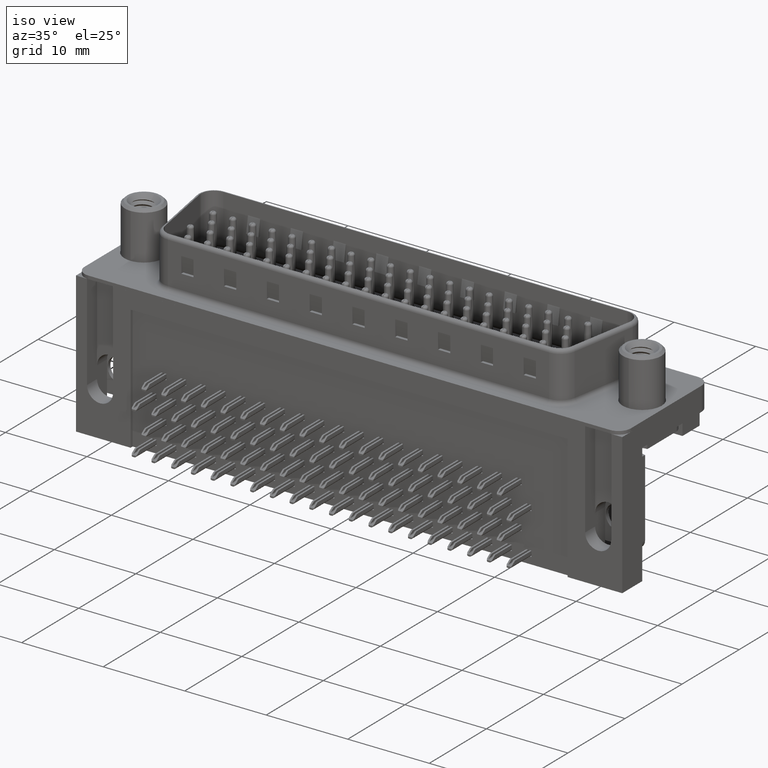
[diagram: clean part render]
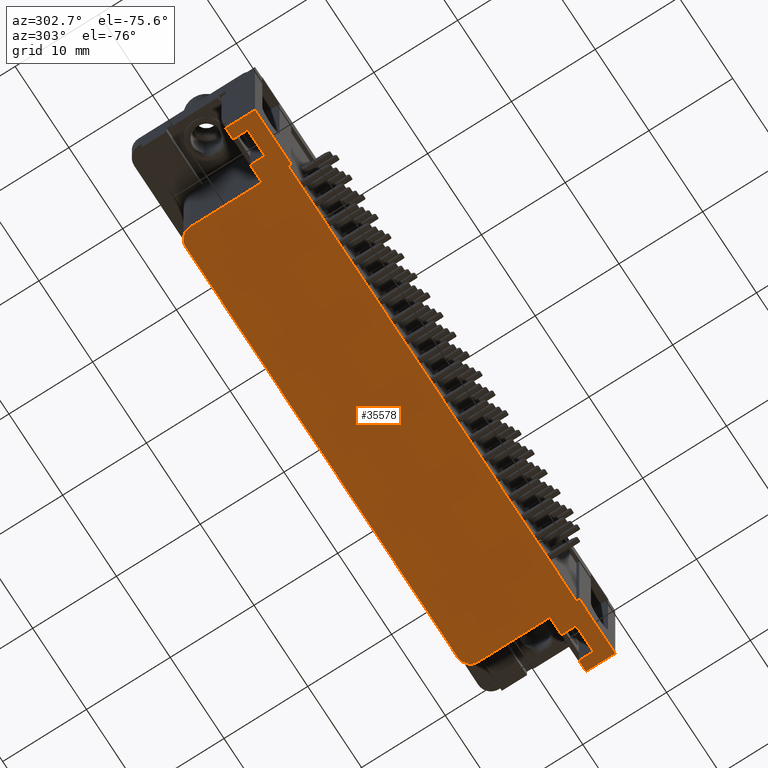
[diagram: tour spotlight — one face highlighted and labeled with its STEP entity id]
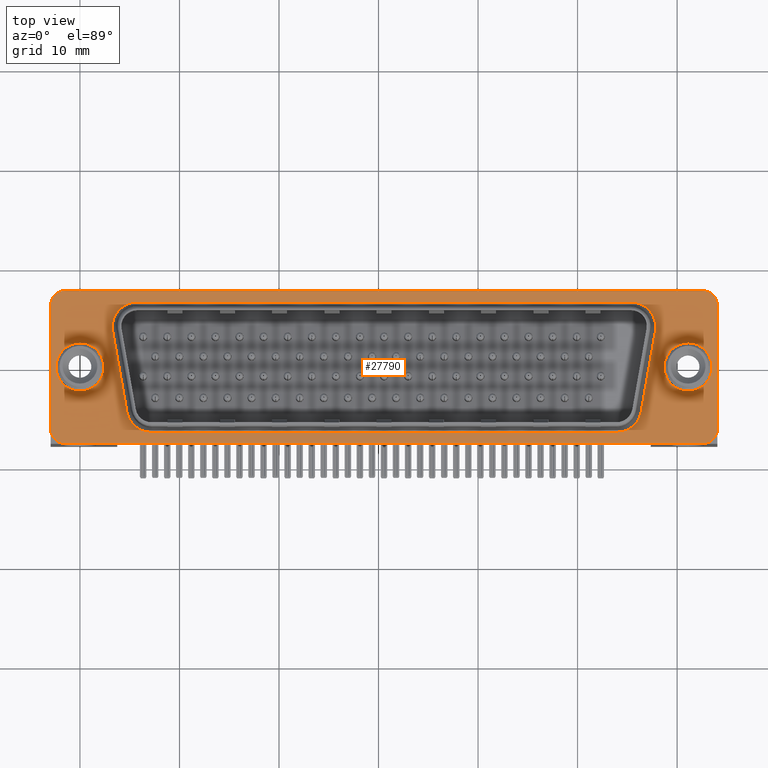
[diagram: tour spotlight — one face highlighted and labeled with its STEP entity id]
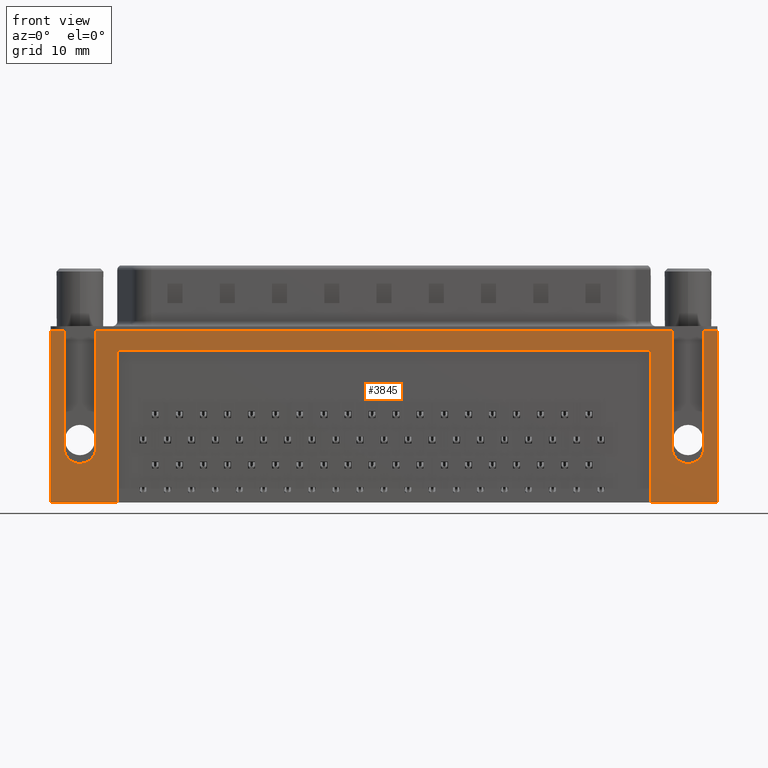
[diagram: tour spotlight — one face highlighted and labeled with its STEP entity id]
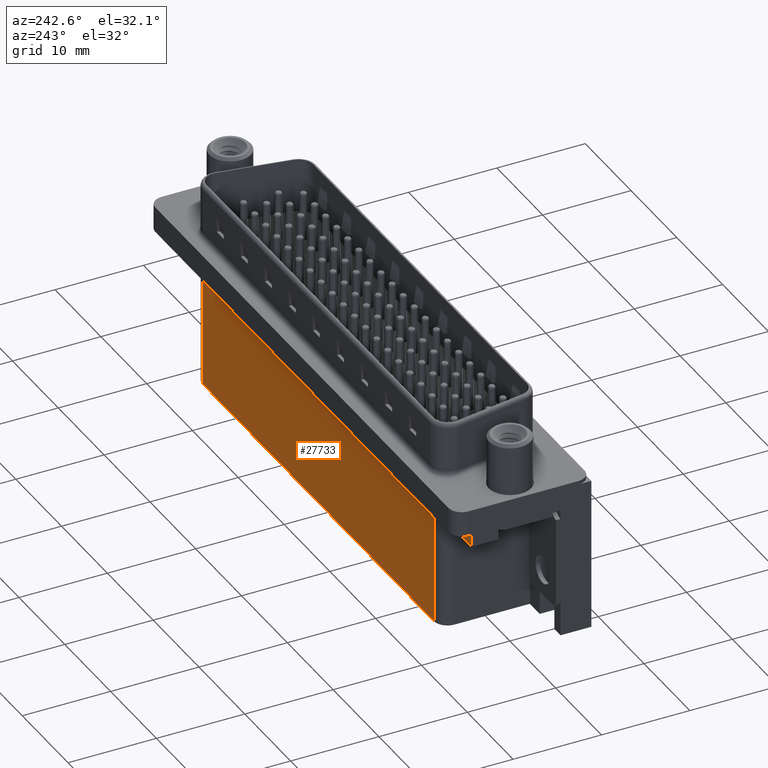
[diagram: tour spotlight — one face highlighted and labeled with its STEP entity id]
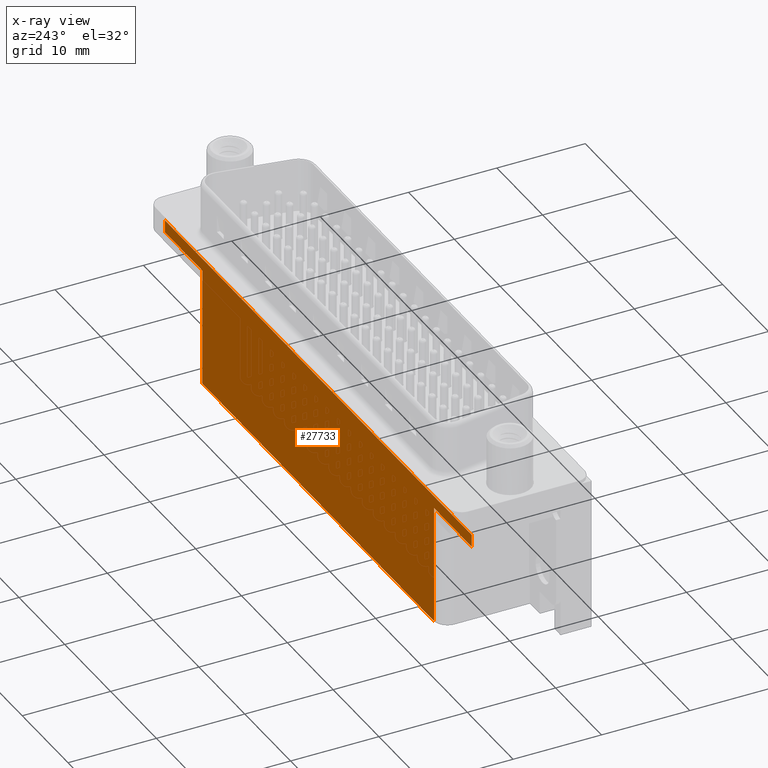
[diagram: x-ray of the same camera — body ghosted, this tour face saturated]
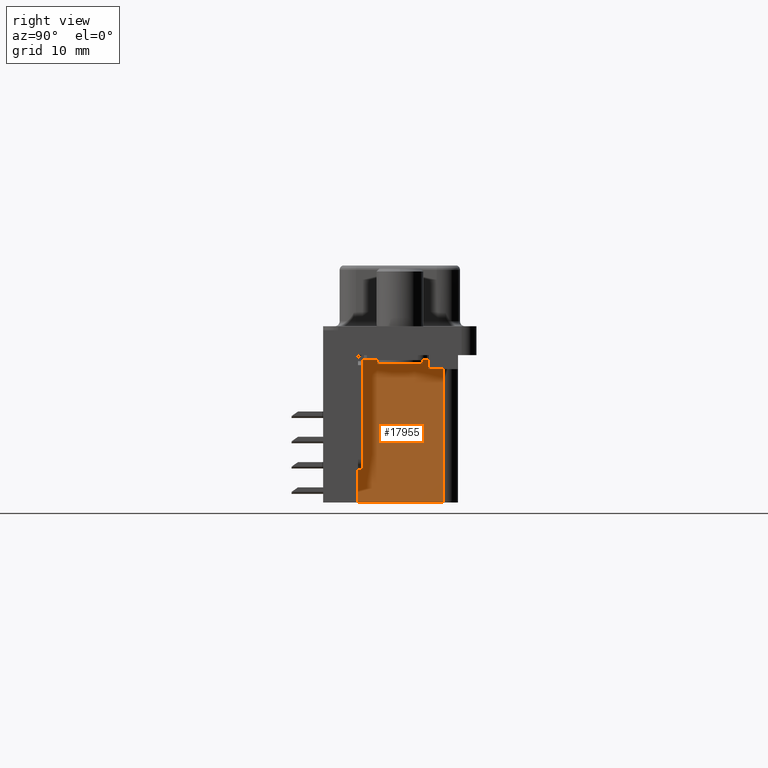
[diagram: tour spotlight — one face highlighted and labeled with its STEP entity id]
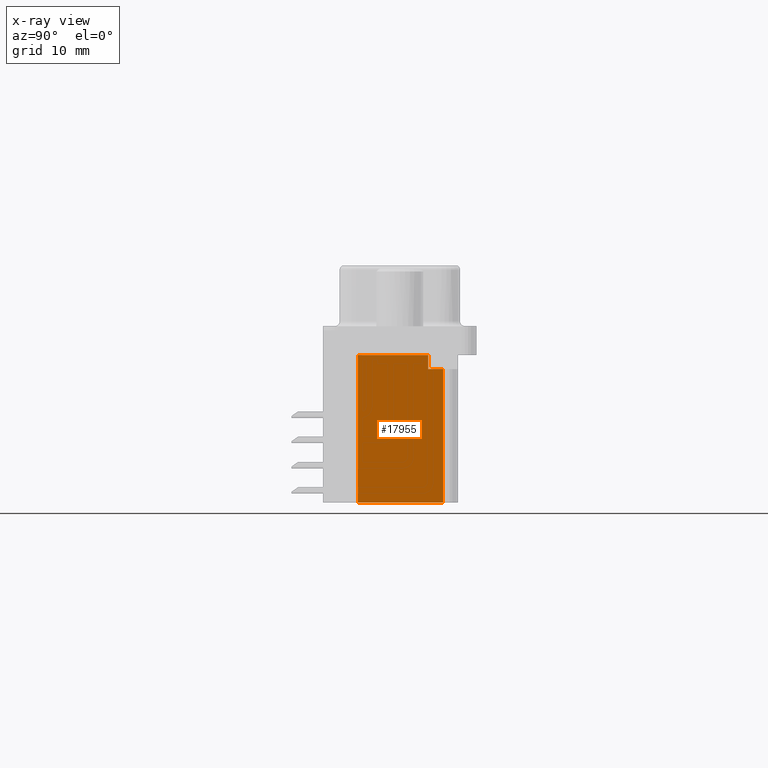
[diagram: x-ray of the same camera — body ghosted, this tour face saturated]
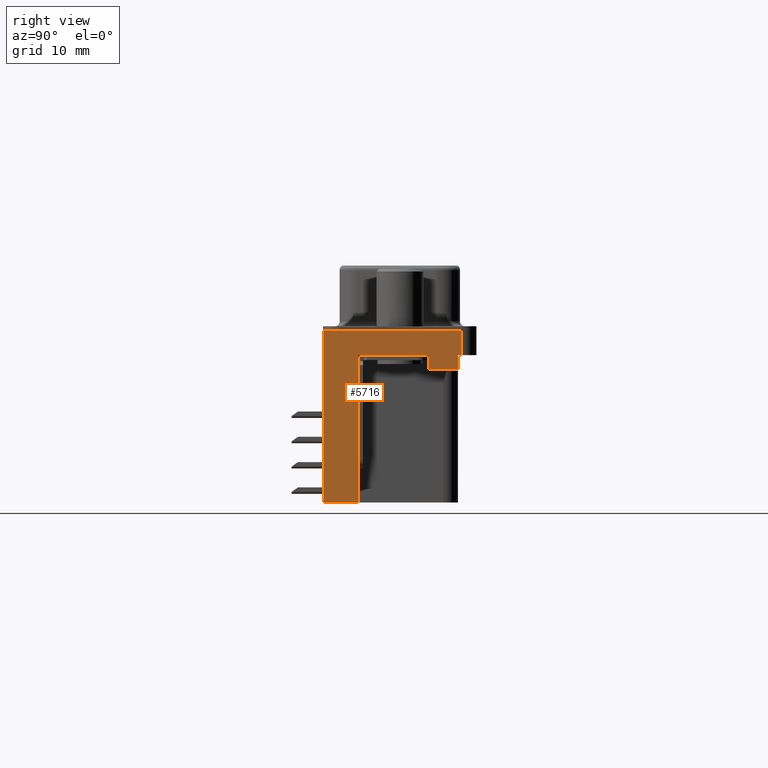
[diagram: tour spotlight — one face highlighted and labeled with its STEP entity id]
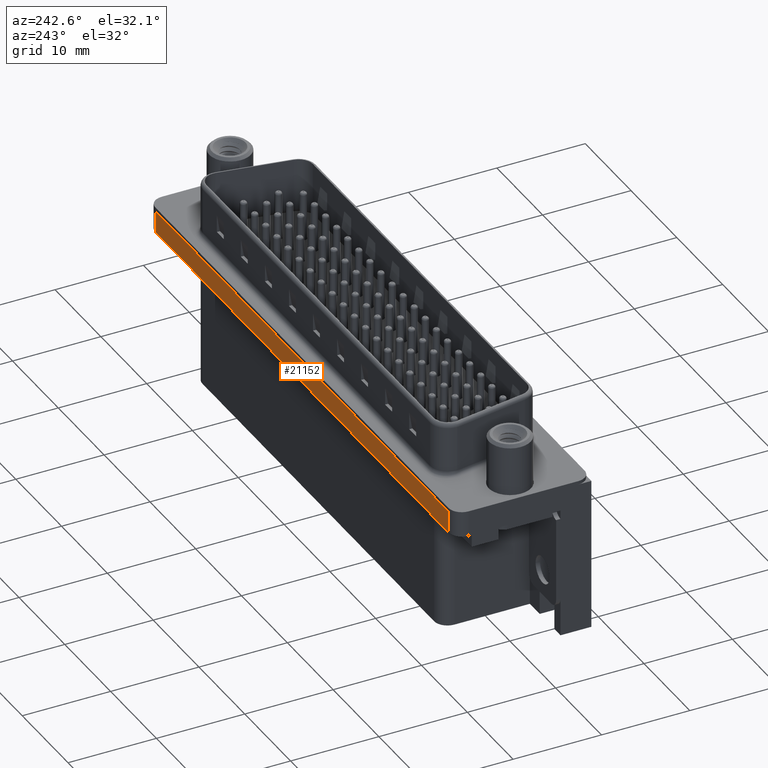
[diagram: tour spotlight — one face highlighted and labeled with its STEP entity id]
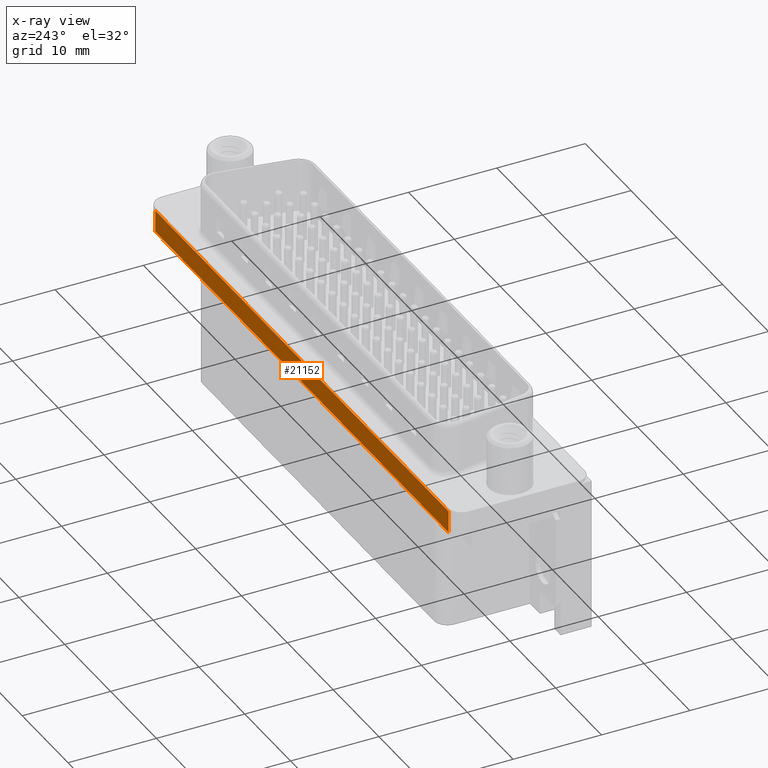
[diagram: x-ray of the same camera — body ghosted, this tour face saturated]
A machine part: a face-by-face anatomy tour. The part has 6268 B-rep faces; the first image is the clean iso view, then the 7 largest visible faces are spotlighted one at a time (largest first), each with its STEP entity span.

Face 1 — auxiliary view, entity #35578. In plain terms, the highlighted planar face has unit normal (0, 0, -1).
Definition (entity closure, byte-faithful):
#186 = EDGE_CURVE ( 'NONE', #8457, #37761, #4224, .T. ) ;
#275 = LINE ( 'NONE', #2799, #8678 ) ;
#291 = VERTEX_POINT ( 'NONE', #10886 ) ;
#406 = VECTOR ( 'NONE', #22950, 1000.000000000000000 ) ;
#416 = CARTESIAN_POINT ( 'NONE',  ( 64.05000000000001100, -7.699999999999999300, -17.30000000000000100 ) ) ;
#646 = LINE ( 'NONE', #26475, #406 ) ;
#868 = EDGE_CURVE ( 'NONE', #5170, #14064, #646, .T. ) ;
#1083 = CARTESIAN_POINT ( 'NONE',  ( 57.34999999999988800, -4.199999999999999300, -17.30000000000000100 ) ) ;
#1515 = CARTESIAN_POINT ( 'NONE',  ( 5.250000000000008000, 4.349999999999992500, -17.30000000000000100 ) ) ;
#1522 = ORIENTED_EDGE ( 'NONE', *, *, #37239, .F. ) ;
#1729 = VECTOR ( 'NONE', #16305, 1000.000000000000000 ) ;
#1827 = VECTOR ( 'NONE', #4273, 1000.000000000000000 ) ;
#1946 = CARTESIAN_POINT ( 'NONE',  ( 59.50000000000001400, -4.199999999999999300, -17.30000000000000100 ) ) ;
#2232 = VECTOR ( 'NONE', #38438, 1000.000000000000000 ) ;
#2320 = VECTOR ( 'NONE', #36912, 1000.000000000000000 ) ;
#2468 = DIRECTION ( 'NONE',  ( -1.000000000000000000, 0.0000000000000000000, 0.0000000000000000000 ) ) ;
#2761 = LINE ( 'NONE', #22773, #34716 ) ;
#2799 = CARTESIAN_POINT ( 'NONE',  ( 3.750000000000007500, -4.199999999999999300, -17.30000000000000100 ) ) ;
#2851 = CARTESIAN_POINT ( 'NONE',  ( 3.750000000000007500, -4.199999999999999300, -17.30000000000000100 ) ) ;
#3022 = EDGE_CURVE ( 'NONE', #5170, #16758, #5032, .T. ) ;
#3243 = DIRECTION ( 'NONE',  ( -0.0000000000000000000, 1.000000000000000000, -0.0000000000000000000 ) ) ;
#3247 = CARTESIAN_POINT ( 'NONE',  ( 64.05000000000001100, -7.699999999999999300, -17.30000000000000100 ) ) ;
#3937 = EDGE_CURVE ( 'NONE', #4083, #35073, #37513, .T. ) ;
#4056 = CARTESIAN_POINT ( 'NONE',  ( 55.84999999999988800, 5.849999999999993400, -17.30000000000000100 ) ) ;
#4083 = VERTEX_POINT ( 'NONE', #31414 ) ;
#4224 = LINE ( 'NONE', #28745, #4334 ) ;
#4273 = DIRECTION ( 'NONE',  ( 1.000000000000000000, 0.0000000000000000000, 0.0000000000000000000 ) ) ;
#4334 = VECTOR ( 'NONE', #20152, 1000.000000000000000 ) ;
#4552 = ORIENTED_EDGE ( 'NONE', *, *, #13543, .T. ) ;
#4709 = DIRECTION ( 'NONE',  ( 0.0000000000000000000, 0.0000000000000000000, -1.000000000000000000 ) ) ;
#5009 = CARTESIAN_POINT ( 'NONE',  ( 57.34999999999988800, -4.199999999999999300, -17.30000000000000100 ) ) ;
#5032 = LINE ( 'NONE', #8994, #39039 ) ;
#5170 = VERTEX_POINT ( 'NONE', #33845 ) ;
#5245 = CARTESIAN_POINT ( 'NONE',  ( -2.949999999999992200, -4.199999999999999300, -17.30000000000000100 ) ) ;
#6172 = CARTESIAN_POINT ( 'NONE',  ( -2.949999999999998000, -7.699999999999999300, -17.30000000000000100 ) ) ;
#6342 = CARTESIAN_POINT ( 'NONE',  ( 5.250000000000008000, 5.849999999999993400, -17.30000000000000100 ) ) ;
#6561 = EDGE_CURVE ( 'NONE', #41063, #38649, #36155, .T. ) ;
#6573 = VERTEX_POINT ( 'NONE', #1946 ) ;
#6856 = CARTESIAN_POINT ( 'NONE',  ( 55.84999999999988800, 4.349999999999992500, -17.30000000000000100 ) ) ;
#6961 = CARTESIAN_POINT ( 'NONE',  ( 62.70000000000000300, -5.949999999999998400, -17.30000000000000100 ) ) ;
#7173 = ORIENTED_EDGE ( 'NONE', *, *, #24045, .T. ) ;
#7238 = CARTESIAN_POINT ( 'NONE',  ( 57.34999999999988800, -4.199999999999999300, -17.30000000000000100 ) ) ;
#7246 = CIRCLE ( 'NONE', #38988, 1.500000000000000400 ) ;
#7502 = AXIS2_PLACEMENT_3D ( 'NONE', #1515, #4709, #27050 ) ;
#8280 = CARTESIAN_POINT ( 'NONE',  ( -1.600000000000001900, -4.199999999999999300, -17.30000000000000100 ) ) ;
#8407 = CARTESIAN_POINT ( 'NONE',  ( 1.599999999999999900, -5.949999999999998400, -17.30000000000000100 ) ) ;
#8457 = VERTEX_POINT ( 'NONE', #18304 ) ;
#8550 = EDGE_CURVE ( 'NONE', #27947, #8457, #40454, .T. ) ;
#8579 = ORIENTED_EDGE ( 'NONE', *, *, #15779, .F. ) ;
#8678 = VECTOR ( 'NONE', #31558, 1000.000000000000000 ) ;
#8786 = CARTESIAN_POINT ( 'NONE',  ( 5.250000000000008000, -5.949999999999998400, -17.30000000000000100 ) ) ;
#8994 = CARTESIAN_POINT ( 'NONE',  ( 3.750000000000004000, -7.350000000000000500, -17.30000000000000100 ) ) ;
#9411 = CARTESIAN_POINT ( 'NONE',  ( 3.750000000000007100, 4.349999999999992500, -17.30000000000000100 ) ) ;
#9569 = DIRECTION ( 'NONE',  ( 1.000000000000000000, -1.941854637287470400E-016, 0.0000000000000000000 ) ) ;
#10055 = DIRECTION ( 'NONE',  ( -1.000000000000000000, 0.0000000000000000000, 0.0000000000000000000 ) ) ;
#10155 = DIRECTION ( 'NONE',  ( -0.0000000000000000000, 1.000000000000000000, -0.0000000000000000000 ) ) ;
#10156 = EDGE_CURVE ( 'NONE', #20959, #27947, #27796, .T. ) ;
#10588 = VECTOR ( 'NONE', #25528, 1000.000000000000000 ) ;
#10721 = EDGE_CURVE ( 'NONE', #291, #33410, #275, .T. ) ;
#10853 = EDGE_CURVE ( 'NONE', #28672, #4083, #2761, .T. ) ;
#10886 = CARTESIAN_POINT ( 'NONE',  ( -2.949999999999992200, -4.199999999999999300, -17.30000000000000100 ) ) ;
#10955 = VERTEX_POINT ( 'NONE', #4056 ) ;
#11064 = DIRECTION ( 'NONE',  ( 0.0000000000000000000, 0.0000000000000000000, -1.000000000000000000 ) ) ;
#12337 = VECTOR ( 'NONE', #3243, 1000.000000000000000 ) ;
#12532 = CARTESIAN_POINT ( 'NONE',  ( 57.34999999999988800, 4.349999999999992500, -17.30000000000000100 ) ) ;
#13145 = CARTESIAN_POINT ( 'NONE',  ( 62.70000000000000300, -5.949999999999998400, -17.30000000000000100 ) ) ;
#13478 = ORIENTED_EDGE ( 'NONE', *, *, #8550, .T. ) ;
#13543 = EDGE_CURVE ( 'NONE', #36629, #291, #33079, .T. ) ;
#14064 = VERTEX_POINT ( 'NONE', #39482 ) ;
#14843 = DIRECTION ( 'NONE',  ( 1.000000000000000000, 0.0000000000000000000, 0.0000000000000000000 ) ) ;
#15738 = CARTESIAN_POINT ( 'NONE',  ( 57.35000000000000900, -7.350000000000011200, -17.30000000000000100 ) ) ;
#15779 = EDGE_CURVE ( 'NONE', #16758, #35073, #25323, .T. ) ;
#15826 = ORIENTED_EDGE ( 'NONE', *, *, #10721, .T. ) ;
#16000 = ORIENTED_EDGE ( 'NONE', *, *, #17935, .T. ) ;
#16305 = DIRECTION ( 'NONE',  ( -0.0000000000000000000, 1.000000000000000000, -0.0000000000000000000 ) ) ;
#16758 = VERTEX_POINT ( 'NONE', #15738 ) ;
#17778 = CARTESIAN_POINT ( 'NONE',  ( 5.250000000000008000, -5.949999999999998400, -17.30000000000000100 ) ) ;
#17780 = VECTOR ( 'NONE', #24958, 1000.000000000000000 ) ;
#17787 = DIRECTION ( 'NONE',  ( -0.0000000000000000000, -1.000000000000000000, -0.0000000000000000000 ) ) ;
#17935 = EDGE_CURVE ( 'NONE', #35902, #30796, #28195, .T. ) ;
#18051 = CARTESIAN_POINT ( 'NONE',  ( 64.05000000000001100, -4.199999999999999300, -17.30000000000000100 ) ) ;
#18304 = CARTESIAN_POINT ( 'NONE',  ( 3.750000000000007500, -4.199999999999999300, -17.30000000000000100 ) ) ;
#18726 = DIRECTION ( 'NONE',  ( 1.000000000000000000, -0.0000000000000000000, -0.0000000000000000000 ) ) ;
#19185 = CARTESIAN_POINT ( 'NONE',  ( -1.600000000000001900, -5.949999999999998400, -17.30000000000000100 ) ) ;
#19198 = LINE ( 'NONE', #3247, #2232 ) ;
#19417 = LINE ( 'NONE', #32550, #27925 ) ;
#19426 = EDGE_LOOP ( 'NONE', ( #1522, #29756, #16000, #25204, #27214, #36776, #8579, #33523, #28079, #32493, #4552, #15826, #30394, #41070, #27933, #13478, #23628, #23705, #21615, #7173, #30123, #40202 ) ) ;
#19540 = VECTOR ( 'NONE', #27488, 1000.000000000000000 ) ;
#19676 = DIRECTION ( 'NONE',  ( 0.0000000000000000000, -1.000000000000000000, 0.0000000000000000000 ) ) ;
#19796 = LINE ( 'NONE', #1083, #1827 ) ;
#19887 = VERTEX_POINT ( 'NONE', #30158 ) ;
#20152 = DIRECTION ( 'NONE',  ( -5.072290865429265400E-017, 1.000000000000000000, 0.0000000000000000000 ) ) ;
#20619 = PLANE ( 'NONE',  #7502 ) ;
#20923 = EDGE_CURVE ( 'NONE', #28853, #20959, #21546, .T. ) ;
#20959 = VERTEX_POINT ( 'NONE', #8407 ) ;
#21181 = CARTESIAN_POINT ( 'NONE',  ( 59.50000000000001400, -5.949999999999998400, -17.30000000000000100 ) ) ;
#21546 = LINE ( 'NONE', #17778, #19540 ) ;
#21615 = ORIENTED_EDGE ( 'NONE', *, *, #32334, .T. ) ;
#21867 = VECTOR ( 'NONE', #2468, 1000.000000000000000 ) ;
#21873 = LINE ( 'NONE', #41429, #12337 ) ;
#22198 = CIRCLE ( 'NONE', #28921, 1.500000000000001300 ) ;
#22773 = CARTESIAN_POINT ( 'NONE',  ( 64.05000000000001100, -4.199999999999999300, -17.30000000000000100 ) ) ;
#22950 = DIRECTION ( 'NONE',  ( -1.970636860084006900E-016, -1.000000000000000000, -0.0000000000000000000 ) ) ;
#23205 = EDGE_CURVE ( 'NONE', #30796, #28672, #39778, .T. ) ;
#23628 = ORIENTED_EDGE ( 'NONE', *, *, #186, .T. ) ;
#23705 = ORIENTED_EDGE ( 'NONE', *, *, #38227, .T. ) ;
#24045 = EDGE_CURVE ( 'NONE', #10955, #41063, #22198, .T. ) ;
#24605 = VECTOR ( 'NONE', #37225, 1000.000000000000000 ) ;
#24958 = DIRECTION ( 'NONE',  ( -1.970636860084006900E-016, -1.000000000000000000, -0.0000000000000000000 ) ) ;
#25204 = ORIENTED_EDGE ( 'NONE', *, *, #23205, .T. ) ;
#25323 = LINE ( 'NONE', #35546, #17780 ) ;
#25528 = DIRECTION ( 'NONE',  ( 1.000000000000000000, -1.714153632388153300E-017, 0.0000000000000000000 ) ) ;
#26475 = CARTESIAN_POINT ( 'NONE',  ( 3.750000000000004000, -7.350000000000000500, -17.30000000000000100 ) ) ;
#27050 = DIRECTION ( 'NONE',  ( -1.000000000000000000, 0.0000000000000000000, -0.0000000000000000000 ) ) ;
#27214 = ORIENTED_EDGE ( 'NONE', *, *, #10853, .T. ) ;
#27361 = CARTESIAN_POINT ( 'NONE',  ( 57.35000000000000900, -7.700000000000010800, -17.30000000000000100 ) ) ;
#27364 = LINE ( 'NONE', #8786, #21867 ) ;
#27488 = DIRECTION ( 'NONE',  ( 1.000000000000000000, -0.0000000000000000000, 0.0000000000000000000 ) ) ;
#27629 = LINE ( 'NONE', #6342, #10588 ) ;
#27796 = LINE ( 'NONE', #36785, #2320 ) ;
#27925 = VECTOR ( 'NONE', #10155, 1000.000000000000000 ) ;
#27933 = ORIENTED_EDGE ( 'NONE', *, *, #10156, .T. ) ;
#27947 = VERTEX_POINT ( 'NONE', #36730 ) ;
#28079 = ORIENTED_EDGE ( 'NONE', *, *, #868, .T. ) ;
#28195 = LINE ( 'NONE', #13145, #1729 ) ;
#28637 = VERTEX_POINT ( 'NONE', #21181 ) ;
#28672 = VERTEX_POINT ( 'NONE', #18051 ) ;
#28720 = EDGE_CURVE ( 'NONE', #35902, #28637, #27364, .T. ) ;
#28745 = CARTESIAN_POINT ( 'NONE',  ( 3.750000000000007500, -4.199999999999999300, -17.30000000000000100 ) ) ;
#28853 = VERTEX_POINT ( 'NONE', #19185 ) ;
#28921 = AXIS2_PLACEMENT_3D ( 'NONE', #6856, #29264, #10055 ) ;
#29264 = DIRECTION ( 'NONE',  ( 0.0000000000000000000, 0.0000000000000000000, -1.000000000000000000 ) ) ;
#29419 = FACE_OUTER_BOUND ( 'NONE', #19426, .T. ) ;
#29756 = ORIENTED_EDGE ( 'NONE', *, *, #28720, .F. ) ;
#30123 = ORIENTED_EDGE ( 'NONE', *, *, #6561, .T. ) ;
#30158 = CARTESIAN_POINT ( 'NONE',  ( 5.250000000000008000, 5.849999999999993400, -17.30000000000000100 ) ) ;
#30240 = CARTESIAN_POINT ( 'NONE',  ( 5.250000000000008000, 4.349999999999992500, -17.30000000000000100 ) ) ;
#30243 = VECTOR ( 'NONE', #14843, 1000.000000000000000 ) ;
#30394 = ORIENTED_EDGE ( 'NONE', *, *, #35908, .F. ) ;
#30788 = CARTESIAN_POINT ( 'NONE',  ( 62.70000000000000300, -4.199999999999999300, -17.30000000000000100 ) ) ;
#30796 = VERTEX_POINT ( 'NONE', #30788 ) ;
#30804 = CARTESIAN_POINT ( 'NONE',  ( 57.34999999999988800, -4.199999999999999300, -17.30000000000000100 ) ) ;
#31414 = CARTESIAN_POINT ( 'NONE',  ( 64.05000000000001100, -7.699999999999999300, -17.30000000000000100 ) ) ;
#31558 = DIRECTION ( 'NONE',  ( 1.000000000000000000, -0.0000000000000000000, -0.0000000000000000000 ) ) ;
#31748 = EDGE_CURVE ( 'NONE', #14064, #36629, #19198, .T. ) ;
#31919 = VECTOR ( 'NONE', #18726, 1000.000000000000000 ) ;
#32334 = EDGE_CURVE ( 'NONE', #19887, #10955, #27629, .T. ) ;
#32493 = ORIENTED_EDGE ( 'NONE', *, *, #31748, .T. ) ;
#32550 = CARTESIAN_POINT ( 'NONE',  ( -1.600000000000001900, -5.949999999999998400, -17.30000000000000100 ) ) ;
#33079 = LINE ( 'NONE', #5245, #24605 ) ;
#33410 = VERTEX_POINT ( 'NONE', #8280 ) ;
#33419 = DIRECTION ( 'NONE',  ( -1.000000000000000000, 0.0000000000000000000, 0.0000000000000000000 ) ) ;
#33523 = ORIENTED_EDGE ( 'NONE', *, *, #3022, .F. ) ;
#33845 = CARTESIAN_POINT ( 'NONE',  ( 3.750000000000002700, -7.350000000000000500, -17.30000000000000100 ) ) ;
#34716 = VECTOR ( 'NONE', #19676, 1000.000000000000000 ) ;
#35073 = VERTEX_POINT ( 'NONE', #27361 ) ;
#35546 = CARTESIAN_POINT ( 'NONE',  ( 57.35000000000000900, -7.350000000000011200, -17.30000000000000100 ) ) ;
#35578 = ADVANCED_FACE ( 'NONE', ( #29419 ), #20619, .T. ) ;
#35902 = VERTEX_POINT ( 'NONE', #6961 ) ;
#35908 = EDGE_CURVE ( 'NONE', #28853, #33410, #19417, .T. ) ;
#36155 = LINE ( 'NONE', #5009, #41096 ) ;
#36629 = VERTEX_POINT ( 'NONE', #6172 ) ;
#36730 = CARTESIAN_POINT ( 'NONE',  ( 1.599999999999999400, -4.199999999999999300, -17.30000000000000100 ) ) ;
#36776 = ORIENTED_EDGE ( 'NONE', *, *, #3937, .T. ) ;
#36785 = CARTESIAN_POINT ( 'NONE',  ( 1.599999999999999400, -5.949999999999998400, -17.30000000000000100 ) ) ;
#36912 = DIRECTION ( 'NONE',  ( -0.0000000000000000000, 1.000000000000000000, -0.0000000000000000000 ) ) ;
#37225 = DIRECTION ( 'NONE',  ( 1.610814656264177800E-015, 1.000000000000000000, -0.0000000000000000000 ) ) ;
#37239 = EDGE_CURVE ( 'NONE', #28637, #6573, #21873, .T. ) ;
#37513 = LINE ( 'NONE', #416, #39576 ) ;
#37761 = VERTEX_POINT ( 'NONE', #9411 ) ;
#38168 = EDGE_CURVE ( 'NONE', #38649, #6573, #19796, .T. ) ;
#38227 = EDGE_CURVE ( 'NONE', #37761, #19887, #7246, .T. ) ;
#38438 = DIRECTION ( 'NONE',  ( -1.000000000000000000, 0.0000000000000000000, 0.0000000000000000000 ) ) ;
#38649 = VERTEX_POINT ( 'NONE', #7238 ) ;
#38988 = AXIS2_PLACEMENT_3D ( 'NONE', #30240, #11064, #33419 ) ;
#39039 = VECTOR ( 'NONE', #9569, 1000.000000000000000 ) ;
#39482 = CARTESIAN_POINT ( 'NONE',  ( 3.750000000000004000, -7.700000000000000200, -17.30000000000000100 ) ) ;
#39576 = VECTOR ( 'NONE', #40982, 1000.000000000000000 ) ;
#39778 = LINE ( 'NONE', #30804, #30243 ) ;
#40202 = ORIENTED_EDGE ( 'NONE', *, *, #38168, .T. ) ;
#40454 = LINE ( 'NONE', #2851, #31919 ) ;
#40982 = DIRECTION ( 'NONE',  ( -1.000000000000000000, 0.0000000000000000000, 0.0000000000000000000 ) ) ;
#41063 = VERTEX_POINT ( 'NONE', #12532 ) ;
#41070 = ORIENTED_EDGE ( 'NONE', *, *, #20923, .T. ) ;
#41096 = VECTOR ( 'NONE', #17787, 1000.000000000000000 ) ;
#41429 = CARTESIAN_POINT ( 'NONE',  ( 59.50000000000001400, -5.949999999999998400, -17.30000000000000100 ) ) ;

Face 2 — top view, entity #27790. In plain terms, the highlighted planar face has unit normal (0, 0, 1).
Definition (entity closure, byte-faithful):
#504 = EDGE_CURVE ( 'NONE', #25695, #17543, #2769, .T. ) ;
#645 = LINE ( 'NONE', #32905, #8067 ) ;
#972 = DIRECTION ( 'NONE',  ( 1.000000000000000000, 0.0000000000000000000, 0.0000000000000000000 ) ) ;
#980 = DIRECTION ( 'NONE',  ( 0.0000000000000000000, 0.0000000000000000000, 1.000000000000000000 ) ) ;
#1033 = CARTESIAN_POINT ( 'NONE',  ( 62.54999999999999700, 6.200000000000006400, 0.4000000000000000200 ) ) ;
#1252 = EDGE_LOOP ( 'NONE', ( #31275, #17836 ) ) ;
#1332 = ORIENTED_EDGE ( 'NONE', *, *, #504, .T. ) ;
#1491 = AXIS2_PLACEMENT_3D ( 'NONE', #1909, #24237, #5107 ) ;
#1501 = CIRCLE ( 'NONE', #14605, 2.500000000000000400 ) ;
#1616 = DIRECTION ( 'NONE',  ( -1.000000000000000000, 0.0000000000000000000, 0.0000000000000000000 ) ) ;
#1909 = CARTESIAN_POINT ( 'NONE',  ( 53.92175145626148900, -4.049999999999999800, 0.3999999999999999700 ) ) ;
#2372 = VECTOR ( 'NONE', #34130, 1000.000000000000000 ) ;
#2631 = ORIENTED_EDGE ( 'NONE', *, *, #33872, .F. ) ;
#2657 = EDGE_CURVE ( 'NONE', #35122, #25695, #5809, .T. ) ;
#2752 = VERTEX_POINT ( 'NONE', #7103 ) ;
#2769 = LINE ( 'NONE', #34173, #2372 ) ;
#2850 = CIRCLE ( 'NONE', #28812, 1.500000000000000000 ) ;
#3168 = CARTESIAN_POINT ( 'NONE',  ( 64.04999999999999700, -6.199999999999995700, 0.4000000000000000200 ) ) ;
#3597 = DIRECTION ( 'NONE',  ( -0.1736481776669234500, 0.9848077530122092400, -0.0000000000000000000 ) ) ;
#3851 = CARTESIAN_POINT ( 'NONE',  ( -1.449999999999996200, -7.700000000000001100, 0.4000000000000000200 ) ) ;
#3943 = EDGE_CURVE ( 'NONE', #7475, #29476, #20535, .T. ) ;
#4166 = AXIS2_PLACEMENT_3D ( 'NONE', #17274, #39732, #20556 ) ;
#4785 = EDGE_CURVE ( 'NONE', #37858, #2752, #1501, .T. ) ;
#5107 = DIRECTION ( 'NONE',  ( 1.000000000000000000, 0.0000000000000000000, 0.0000000000000000000 ) ) ;
#5374 = EDGE_LOOP ( 'NONE', ( #33841, #1332, #29556, #15647, #25050, #27012, #24787, #8424 ) ) ;
#5494 = CARTESIAN_POINT ( 'NONE',  ( -2.949999999999996600, -6.200000000000002000, 0.4000000000000000200 ) ) ;
#5809 = CIRCLE ( 'NONE', #25280, 1.500000000000001300 ) ;
#6002 = CIRCLE ( 'NONE', #38901, 2.399999999999999500 ) ;
#6874 = EDGE_CURVE ( 'NONE', #22575, #37858, #23090, .T. ) ;
#6977 = ORIENTED_EDGE ( 'NONE', *, *, #6874, .T. ) ;
#7103 = CARTESIAN_POINT ( 'NONE',  ( 5.749999999999996400, 6.549999999999997200, 0.4000000000000000200 ) ) ;
#7475 = VERTEX_POINT ( 'NONE', #32105 ) ;
#7500 = CARTESIAN_POINT ( 'NONE',  ( 62.54999999999999700, 6.200000000000006400, 0.4000000000000000200 ) ) ;
#8052 = LINE ( 'NONE', #23780, #24111 ) ;
#8067 = VECTOR ( 'NONE', #36148, 1000.000000000000000 ) ;
#8371 = FACE_BOUND ( 'NONE', #1252, .T. ) ;
#8424 = ORIENTED_EDGE ( 'NONE', *, *, #19205, .T. ) ;
#8837 = EDGE_CURVE ( 'NONE', #9030, #31946, #39941, .T. ) ;
#8906 = CIRCLE ( 'NONE', #17341, 2.400000000000000400 ) ;
#9030 = VERTEX_POINT ( 'NONE', #40705 ) ;
#9374 = FACE_BOUND ( 'NONE', #29330, .T. ) ;
#9440 = CARTESIAN_POINT ( 'NONE',  ( 63.50000000000000000, 1.122388791418549100E-014, 0.4000000000000000200 ) ) ;
#9754 = ORIENTED_EDGE ( 'NONE', *, *, #19757, .T. ) ;
#9787 = VERTEX_POINT ( 'NONE', #3851 ) ;
#9841 = CARTESIAN_POINT ( 'NONE',  ( 3.287980617469473500, 3.615879555832689700, 0.4000000000000000200 ) ) ;
#10037 = CARTESIAN_POINT ( 'NONE',  ( 2.400000000000000400, 0.0000000000000000000, 0.4000000000000000200 ) ) ;
#10078 = VERTEX_POINT ( 'NONE', #14130 ) ;
#10621 = DIRECTION ( 'NONE',  ( 0.0000000000000000000, 0.0000000000000000000, 1.000000000000000000 ) ) ;
#10702 = VECTOR ( 'NONE', #39178, 1000.000000000000000 ) ;
#10713 = PLANE ( 'NONE',  #36256 ) ;
#11161 = EDGE_CURVE ( 'NONE', #17721, #22575, #33181, .T. ) ;
#11655 = VECTOR ( 'NONE', #13278, 1000.000000000000000 ) ;
#11697 = AXIS2_PLACEMENT_3D ( 'NONE', #15635, #38018, #18859 ) ;
#11788 = CARTESIAN_POINT ( 'NONE',  ( 7.178248543738504800, -4.049999999999999800, 0.3999999999999999700 ) ) ;
#12072 = VERTEX_POINT ( 'NONE', #10037 ) ;
#12299 = CIRCLE ( 'NONE', #13992, 1.500000000000000400 ) ;
#12339 = CARTESIAN_POINT ( 'NONE',  ( 5.749999999999996400, 4.049999999999998000, 0.3999999999999999700 ) ) ;
#12723 = AXIS2_PLACEMENT_3D ( 'NONE', #36432, #36424, #36384 ) ;
#13278 = DIRECTION ( 'NONE',  ( 1.000000000000000000, -0.0000000000000000000, -0.0000000000000000000 ) ) ;
#13297 = EDGE_CURVE ( 'NONE', #38380, #17721, #645, .T. ) ;
#13326 = CARTESIAN_POINT ( 'NONE',  ( 0.0000000000000000000, 0.0000000000000000000, 0.4000000000000000200 ) ) ;
#13773 = CARTESIAN_POINT ( 'NONE',  ( 62.54999999999999700, -7.699999999999994000, 0.4000000000000000200 ) ) ;
#13992 = AXIS2_PLACEMENT_3D ( 'NONE', #18816, #41267, #22072 ) ;
#14130 = CARTESIAN_POINT ( 'NONE',  ( 62.54999999999999700, -7.699999999999994800, 0.4000000000000000200 ) ) ;
#14139 = CARTESIAN_POINT ( 'NONE',  ( 0.0000000000000000000, 0.0000000000000000000, 0.4000000000000000200 ) ) ;
#14342 = VERTEX_POINT ( 'NONE', #37590 ) ;
#14521 = VECTOR ( 'NONE', #39258, 999.9999999999998900 ) ;
#14605 = AXIS2_PLACEMENT_3D ( 'NONE', #12339, #34717, #15546 ) ;
#14995 = DIRECTION ( 'NONE',  ( 1.000000000000000000, 0.0000000000000000000, 0.0000000000000000000 ) ) ;
#15546 = DIRECTION ( 'NONE',  ( 1.000000000000000000, 0.0000000000000000000, 0.0000000000000000000 ) ) ;
#15635 = CARTESIAN_POINT ( 'NONE',  ( 55.35000000000000100, 4.049999999999998000, 0.3999999999999999700 ) ) ;
#15647 = ORIENTED_EDGE ( 'NONE', *, *, #31247, .T. ) ;
#16327 = CARTESIAN_POINT ( 'NONE',  ( 62.54999999999999700, -6.199999999999994800, 0.4000000000000000200 ) ) ;
#16512 = DIRECTION ( 'NONE',  ( 1.000000000000000000, 0.0000000000000000000, 0.0000000000000000000 ) ) ;
#16679 = CARTESIAN_POINT ( 'NONE',  ( 58.39679760177632100, 6.932321639149915200, 0.4000000000000000200 ) ) ;
#16885 = FACE_OUTER_BOUND ( 'NONE', #5374, .T. ) ;
#16988 = DIRECTION ( 'NONE',  ( 1.000000000000000000, 1.084202172485504700E-016, -0.0000000000000000000 ) ) ;
#17274 = CARTESIAN_POINT ( 'NONE',  ( 55.35000000000000100, 4.049999999999998000, 0.3999999999999999700 ) ) ;
#17330 = DIRECTION ( 'NONE',  ( 1.000000000000000000, 0.0000000000000000000, 0.0000000000000000000 ) ) ;
#17341 = AXIS2_PLACEMENT_3D ( 'NONE', #14139, #36540, #17330 ) ;
#17543 = VERTEX_POINT ( 'NONE', #20886 ) ;
#17571 = EDGE_CURVE ( 'NONE', #24826, #38380, #28735, .T. ) ;
#17683 = VERTEX_POINT ( 'NONE', #5494 ) ;
#17721 = VERTEX_POINT ( 'NONE', #34267 ) ;
#17836 = ORIENTED_EDGE ( 'NONE', *, *, #3943, .F. ) ;
#17897 = FACE_BOUND ( 'NONE', #34151, .T. ) ;
#18324 = LINE ( 'NONE', #13773, #24844 ) ;
#18347 = AXIS2_PLACEMENT_3D ( 'NONE', #13326, #35708, #16512 ) ;
#18676 = ORIENTED_EDGE ( 'NONE', *, *, #21903, .T. ) ;
#18816 = CARTESIAN_POINT ( 'NONE',  ( -1.449999999999996400, 6.199999999999999300, 0.4000000000000000200 ) ) ;
#18859 = DIRECTION ( 'NONE',  ( 1.000000000000000000, 0.0000000000000000000, 0.0000000000000000000 ) ) ;
#19205 = EDGE_CURVE ( 'NONE', #23424, #35122, #8052, .T. ) ;
#19233 = LINE ( 'NONE', #26303, #10702 ) ;
#19237 = CARTESIAN_POINT ( 'NONE',  ( 57.81201938253052900, 3.615879555832689300, 0.4000000000000000200 ) ) ;
#19617 = DIRECTION ( 'NONE',  ( 1.000000000000000000, 0.0000000000000000000, 0.0000000000000000000 ) ) ;
#19757 = EDGE_CURVE ( 'NONE', #20701, #24826, #40104, .T. ) ;
#20535 = CIRCLE ( 'NONE', #12723, 2.399999999999999500 ) ;
#20556 = DIRECTION ( 'NONE',  ( 1.000000000000000000, 0.0000000000000000000, 0.0000000000000000000 ) ) ;
#20626 = VECTOR ( 'NONE', #3597, 1000.000000000000100 ) ;
#20701 = VERTEX_POINT ( 'NONE', #19237 ) ;
#20706 = DIRECTION ( 'NONE',  ( 0.0000000000000000000, 0.0000000000000000000, 1.000000000000000000 ) ) ;
#20886 = CARTESIAN_POINT ( 'NONE',  ( -1.449999999999996600, 7.699999999999999300, 0.4000000000000000200 ) ) ;
#21184 = CARTESIAN_POINT ( 'NONE',  ( 62.54999999999999700, 7.700000000000006400, 0.4000000000000000200 ) ) ;
#21697 = CARTESIAN_POINT ( 'NONE',  ( 53.92175145626148900, -6.549999999999998900, 0.4000000000000000200 ) ) ;
#21903 = EDGE_CURVE ( 'NONE', #31946, #20701, #25464, .T. ) ;
#22072 = DIRECTION ( 'NONE',  ( 1.000000000000000000, 0.0000000000000000000, 0.0000000000000000000 ) ) ;
#22575 = VERTEX_POINT ( 'NONE', #31405 ) ;
#22738 = CARTESIAN_POINT ( 'NONE',  ( 4.633038533074465400, -4.012322947271061800, 0.4000000000000000200 ) ) ;
#22839 = CARTESIAN_POINT ( 'NONE',  ( 62.54999999999999700, 6.549999999999997200, 0.4000000000000000200 ) ) ;
#23090 = LINE ( 'NONE', #22738, #20626 ) ;
#23424 = VERTEX_POINT ( 'NONE', #3168 ) ;
#23516 = EDGE_CURVE ( 'NONE', #10078, #23424, #38213, .T. ) ;
#23780 = CARTESIAN_POINT ( 'NONE',  ( 64.04999999999999700, -6.199999999999995700, 0.4000000000000000200 ) ) ;
#23877 = ORIENTED_EDGE ( 'NONE', *, *, #4785, .T. ) ;
#24058 = EDGE_CURVE ( 'NONE', #2752, #9030, #37161, .T. ) ;
#24111 = VECTOR ( 'NONE', #39743, 1000.000000000000000 ) ;
#24237 = DIRECTION ( 'NONE',  ( -0.0000000000000000000, -0.0000000000000000000, -1.000000000000000000 ) ) ;
#24787 = ORIENTED_EDGE ( 'NONE', *, *, #23516, .T. ) ;
#24826 = VERTEX_POINT ( 'NONE', #39133 ) ;
#24844 = VECTOR ( 'NONE', #16988, 1000.000000000000000 ) ;
#24922 = CARTESIAN_POINT ( 'NONE',  ( -2.400000000000000400, 2.939152317953647600E-016, 0.4000000000000000200 ) ) ;
#25050 = ORIENTED_EDGE ( 'NONE', *, *, #29148, .T. ) ;
#25280 = AXIS2_PLACEMENT_3D ( 'NONE', #1033, #980, #972 ) ;
#25464 = CIRCLE ( 'NONE', #11697, 2.500000000000002200 ) ;
#25695 = VERTEX_POINT ( 'NONE', #21184 ) ;
#26199 = EDGE_CURVE ( 'NONE', #29476, #7475, #6002, .T. ) ;
#26219 = AXIS2_PLACEMENT_3D ( 'NONE', #16327, #38761, #19617 ) ;
#26303 = CARTESIAN_POINT ( 'NONE',  ( -2.949999999999998000, -6.200000000000002000, 0.4000000000000000200 ) ) ;
#26899 = ORIENTED_EDGE ( 'NONE', *, *, #24058, .T. ) ;
#27012 = ORIENTED_EDGE ( 'NONE', *, *, #29946, .T. ) ;
#27644 = CARTESIAN_POINT ( 'NONE',  ( 64.04999999999999700, 6.200000000000006400, 0.4000000000000000200 ) ) ;
#27790 = ADVANCED_FACE ( 'NONE', ( #9374, #8371, #17897, #16885 ), #10713, .T. ) ;
#28735 = CIRCLE ( 'NONE', #1491, 2.500000000000002200 ) ;
#28812 = AXIS2_PLACEMENT_3D ( 'NONE', #39896, #20706, #1616 ) ;
#29148 = EDGE_CURVE ( 'NONE', #17683, #9787, #2850, .T. ) ;
#29319 = CIRCLE ( 'NONE', #18347, 2.400000000000000400 ) ;
#29330 = EDGE_LOOP ( 'NONE', ( #36868, #2631 ) ) ;
#29476 = VERTEX_POINT ( 'NONE', #9440 ) ;
#29556 = ORIENTED_EDGE ( 'NONE', *, *, #37676, .T. ) ;
#29823 = CARTESIAN_POINT ( 'NONE',  ( 61.10000000000000100, 1.122388791418549100E-014, 0.4000000000000000200 ) ) ;
#29946 = EDGE_CURVE ( 'NONE', #9787, #10078, #18324, .T. ) ;
#30481 = EDGE_CURVE ( 'NONE', #12072, #32927, #29319, .T. ) ;
#30505 = ORIENTED_EDGE ( 'NONE', *, *, #8837, .T. ) ;
#31247 = EDGE_CURVE ( 'NONE', #14342, #17683, #19233, .T. ) ;
#31275 = ORIENTED_EDGE ( 'NONE', *, *, #26199, .F. ) ;
#31405 = CARTESIAN_POINT ( 'NONE',  ( 4.716229161207980500, -4.484120444167309900, 0.4000000000000000200 ) ) ;
#31946 = VERTEX_POINT ( 'NONE', #39429 ) ;
#32105 = CARTESIAN_POINT ( 'NONE',  ( 58.70000000000000300, 1.151780314598085500E-014, 0.4000000000000000200 ) ) ;
#32591 = AXIS2_PLACEMENT_3D ( 'NONE', #11788, #34153, #14995 ) ;
#32905 = CARTESIAN_POINT ( 'NONE',  ( 62.54999999999999700, -6.549999999999998000, 0.4000000000000000200 ) ) ;
#32927 = VERTEX_POINT ( 'NONE', #24922 ) ;
#32939 = ORIENTED_EDGE ( 'NONE', *, *, #13297, .T. ) ;
#32988 = DIRECTION ( 'NONE',  ( 1.000000000000000000, 0.0000000000000000000, 0.0000000000000000000 ) ) ;
#33093 = DIRECTION ( 'NONE',  ( 1.000000000000000000, 0.0000000000000000000, -0.0000000000000000000 ) ) ;
#33181 = CIRCLE ( 'NONE', #32591, 2.499999999999999600 ) ;
#33841 = ORIENTED_EDGE ( 'NONE', *, *, #2657, .T. ) ;
#33872 = EDGE_CURVE ( 'NONE', #32927, #12072, #8906, .T. ) ;
#33940 = ORIENTED_EDGE ( 'NONE', *, *, #11161, .T. ) ;
#34130 = DIRECTION ( 'NONE',  ( -1.000000000000000000, -1.219727444046192700E-016, 0.0000000000000000000 ) ) ;
#34151 = EDGE_LOOP ( 'NONE', ( #26899, #30505, #18676, #9754, #36897, #32939, #33940, #6977, #23877 ) ) ;
#34153 = DIRECTION ( 'NONE',  ( -0.0000000000000000000, -0.0000000000000000000, -1.000000000000000000 ) ) ;
#34173 = CARTESIAN_POINT ( 'NONE',  ( 62.54999999999999700, 7.700000000000006400, 0.4000000000000000200 ) ) ;
#34267 = CARTESIAN_POINT ( 'NONE',  ( 7.178248543738504800, -6.550000000000000700, 0.4000000000000000200 ) ) ;
#34717 = DIRECTION ( 'NONE',  ( -0.0000000000000000000, -0.0000000000000000000, -1.000000000000000000 ) ) ;
#35122 = VERTEX_POINT ( 'NONE', #27644 ) ;
#35708 = DIRECTION ( 'NONE',  ( 0.0000000000000000000, 0.0000000000000000000, 1.000000000000000000 ) ) ;
#36148 = DIRECTION ( 'NONE',  ( -1.000000000000000000, -0.0000000000000000000, -0.0000000000000000000 ) ) ;
#36256 = AXIS2_PLACEMENT_3D ( 'NONE', #7500, #39430, #33093 ) ;
#36384 = DIRECTION ( 'NONE',  ( 1.000000000000000000, 0.0000000000000000000, 0.0000000000000000000 ) ) ;
#36424 = DIRECTION ( 'NONE',  ( 0.0000000000000000000, 0.0000000000000000000, 1.000000000000000000 ) ) ;
#36432 = CARTESIAN_POINT ( 'NONE',  ( 61.10000000000000100, 1.122388791418549100E-014, 0.4000000000000000200 ) ) ;
#36540 = DIRECTION ( 'NONE',  ( 0.0000000000000000000, 0.0000000000000000000, 1.000000000000000000 ) ) ;
#36868 = ORIENTED_EDGE ( 'NONE', *, *, #30481, .F. ) ;
#36897 = ORIENTED_EDGE ( 'NONE', *, *, #17571, .T. ) ;
#37161 = LINE ( 'NONE', #22839, #11655 ) ;
#37590 = CARTESIAN_POINT ( 'NONE',  ( -2.949999999999998000, 6.199999999999999300, 0.4000000000000000200 ) ) ;
#37676 = EDGE_CURVE ( 'NONE', #17543, #14342, #12299, .T. ) ;
#37858 = VERTEX_POINT ( 'NONE', #9841 ) ;
#38018 = DIRECTION ( 'NONE',  ( -0.0000000000000000000, -0.0000000000000000000, -1.000000000000000000 ) ) ;
#38213 = CIRCLE ( 'NONE', #26219, 1.500000000000001300 ) ;
#38380 = VERTEX_POINT ( 'NONE', #21697 ) ;
#38761 = DIRECTION ( 'NONE',  ( 0.0000000000000000000, 0.0000000000000000000, 1.000000000000000000 ) ) ;
#38901 = AXIS2_PLACEMENT_3D ( 'NONE', #29823, #10621, #32988 ) ;
#39133 = CARTESIAN_POINT ( 'NONE',  ( 56.38377083879201700, -4.484120444167309900, 0.4000000000000000200 ) ) ;
#39178 = DIRECTION ( 'NONE',  ( -0.0000000000000000000, -1.000000000000000000, -0.0000000000000000000 ) ) ;
#39258 = DIRECTION ( 'NONE',  ( -0.1736481776669240600, -0.9848077530122092400, 0.0000000000000000000 ) ) ;
#39429 = CARTESIAN_POINT ( 'NONE',  ( 57.85000000000000900, 4.049999999999998000, 0.3999999999999998600 ) ) ;
#39430 = DIRECTION ( 'NONE',  ( 0.0000000000000000000, 0.0000000000000000000, 1.000000000000000000 ) ) ;
#39732 = DIRECTION ( 'NONE',  ( -0.0000000000000000000, -0.0000000000000000000, -1.000000000000000000 ) ) ;
#39743 = DIRECTION ( 'NONE',  ( 0.0000000000000000000, 1.000000000000000000, 0.0000000000000000000 ) ) ;
#39896 = CARTESIAN_POINT ( 'NONE',  ( -1.449999999999996400, -6.200000000000002000, 0.4000000000000000200 ) ) ;
#39941 = CIRCLE ( 'NONE', #4166, 2.500000000000002200 ) ;
#40104 = LINE ( 'NONE', #16679, #14521 ) ;
#40705 = CARTESIAN_POINT ( 'NONE',  ( 55.35000000000000100, 6.549999999999997200, 0.4000000000000000200 ) ) ;
#41267 = DIRECTION ( 'NONE',  ( 0.0000000000000000000, 0.0000000000000000000, 1.000000000000000000 ) ) ;

Face 3 — front view, entity #3845. In plain terms, the highlighted planar face has unit normal (0, -1, 0).
Definition (entity closure, byte-faithful):
#85 = CARTESIAN_POINT ( 'NONE',  ( 1.600000000000000300, -7.699999999999999300, 2.168404344971008900E-016 ) ) ;
#109 = VECTOR ( 'NONE', #9012, 1000.000000000000000 ) ;
#416 = CARTESIAN_POINT ( 'NONE',  ( 64.05000000000001100, -7.699999999999999300, -17.30000000000000100 ) ) ;
#506 = VECTOR ( 'NONE', #26892, 1000.000000000000000 ) ;
#747 = EDGE_CURVE ( 'NONE', #36629, #10007, #1350, .T. ) ;
#833 = CIRCLE ( 'NONE', #33625, 1.599999999999990300 ) ;
#1056 = CARTESIAN_POINT ( 'NONE',  ( 57.35000000000000900, -7.700000000000010800, -2.000000000000000000 ) ) ;
#1085 = CARTESIAN_POINT ( 'NONE',  ( 61.10000000000001600, -7.699999999999999300, -11.78000000000000100 ) ) ;
#1199 = VECTOR ( 'NONE', #21009, 1000.000000000000000 ) ;
#1350 = LINE ( 'NONE', #21792, #1199 ) ;
#1530 = LINE ( 'NONE', #23706, #506 ) ;
#1799 = EDGE_CURVE ( 'NONE', #2948, #26710, #24389, .T. ) ;
#2232 = VECTOR ( 'NONE', #38438, 1000.000000000000000 ) ;
#2299 = ORIENTED_EDGE ( 'NONE', *, *, #40352, .F. ) ;
#2784 = VECTOR ( 'NONE', #34690, 1000.000000000000000 ) ;
#2948 = VERTEX_POINT ( 'NONE', #8360 ) ;
#3247 = CARTESIAN_POINT ( 'NONE',  ( 64.05000000000001100, -7.699999999999999300, -17.30000000000000100 ) ) ;
#3318 = CARTESIAN_POINT ( 'NONE',  ( 59.50000000000002800, -7.699999999999999300, 0.0000000000000000000 ) ) ;
#3650 = VECTOR ( 'NONE', #5188, 1000.000000000000000 ) ;
#3784 = ORIENTED_EDGE ( 'NONE', *, *, #12444, .F. ) ;
#3845 = ADVANCED_FACE ( 'NONE', ( #4562 ), #38255, .T. ) ;
#3937 = EDGE_CURVE ( 'NONE', #4083, #35073, #37513, .T. ) ;
#4083 = VERTEX_POINT ( 'NONE', #31414 ) ;
#4275 = DIRECTION ( 'NONE',  ( 0.0000000000000000000, 0.0000000000000000000, 1.000000000000000000 ) ) ;
#4562 = FACE_OUTER_BOUND ( 'NONE', #13835, .T. ) ;
#4633 = LINE ( 'NONE', #33935, #19600 ) ;
#5188 = DIRECTION ( 'NONE',  ( -0.0000000000000000000, -0.0000000000000000000, 1.000000000000000000 ) ) ;
#5251 = EDGE_CURVE ( 'NONE', #26464, #15219, #10761, .T. ) ;
#5319 = ORIENTED_EDGE ( 'NONE', *, *, #9975, .F. ) ;
#5496 = CARTESIAN_POINT ( 'NONE',  ( 1.442633929395582100E-015, -7.699999999999999300, -11.78000000000000100 ) ) ;
#5903 = CARTESIAN_POINT ( 'NONE',  ( 62.70000000000000300, -7.699999999999999300, 0.0000000000000000000 ) ) ;
#5946 = VERTEX_POINT ( 'NONE', #14643 ) ;
#6122 = VERTEX_POINT ( 'NONE', #28234 ) ;
#6172 = CARTESIAN_POINT ( 'NONE',  ( -2.949999999999998000, -7.699999999999999300, -17.30000000000000100 ) ) ;
#6470 = DIRECTION ( 'NONE',  ( 0.0000000000000000000, 0.0000000000000000000, -1.000000000000000000 ) ) ;
#6541 = CARTESIAN_POINT ( 'NONE',  ( 64.05000000000001100, -7.699999999999999300, 0.0000000000000000000 ) ) ;
#6599 = AXIS2_PLACEMENT_3D ( 'NONE', #5496, #27864, #8648 ) ;
#6767 = ORIENTED_EDGE ( 'NONE', *, *, #25313, .F. ) ;
#7033 = CARTESIAN_POINT ( 'NONE',  ( 61.10000000000001600, -7.699999999999999300, -13.37999999999999000 ) ) ;
#8290 = DIRECTION ( 'NONE',  ( 0.0000000000000000000, -1.000000000000000000, 0.0000000000000000000 ) ) ;
#8360 = CARTESIAN_POINT ( 'NONE',  ( 62.70000000000000300, -7.699999999999999300, 0.0000000000000000000 ) ) ;
#8394 = AXIS2_PLACEMENT_3D ( 'NONE', #38924, #38733, #38693 ) ;
#8398 = AXIS2_PLACEMENT_3D ( 'NONE', #27512, #8290, #30712 ) ;
#8520 = LINE ( 'NONE', #15316, #109 ) ;
#8526 = LINE ( 'NONE', #37943, #15051 ) ;
#8597 = ORIENTED_EDGE ( 'NONE', *, *, #30948, .F. ) ;
#8648 = DIRECTION ( 'NONE',  ( 0.0000000000000000000, 0.0000000000000000000, -1.000000000000000000 ) ) ;
#9012 = DIRECTION ( 'NONE',  ( 0.0000000000000000000, 0.0000000000000000000, 1.000000000000000000 ) ) ;
#9975 = EDGE_CURVE ( 'NONE', #33726, #25508, #833, .T. ) ;
#10007 = VERTEX_POINT ( 'NONE', #26752 ) ;
#10087 = CARTESIAN_POINT ( 'NONE',  ( 62.70000000000000300, -7.699999999999999300, -11.78000000000000100 ) ) ;
#10761 = CIRCLE ( 'NONE', #6599, 1.599999999999999000 ) ;
#11228 = LINE ( 'NONE', #5903, #2784 ) ;
#11656 = CARTESIAN_POINT ( 'NONE',  ( 3.750000000000002700, -7.700000000000000200, -2.000000000000000000 ) ) ;
#11870 = ORIENTED_EDGE ( 'NONE', *, *, #31748, .F. ) ;
#12070 = VERTEX_POINT ( 'NONE', #35651 ) ;
#12396 = ORIENTED_EDGE ( 'NONE', *, *, #5251, .F. ) ;
#12444 = EDGE_CURVE ( 'NONE', #35073, #29086, #21626, .T. ) ;
#12602 = DIRECTION ( 'NONE',  ( 0.0000000000000000000, -1.000000000000000000, 0.0000000000000000000 ) ) ;
#12689 = CARTESIAN_POINT ( 'NONE',  ( 59.50000000000002800, -7.699999999999999300, 0.0000000000000000000 ) ) ;
#13205 = VECTOR ( 'NONE', #37227, 1000.000000000000000 ) ;
#13774 = EDGE_CURVE ( 'NONE', #18520, #6122, #15533, .T. ) ;
#13835 = EDGE_LOOP ( 'NONE', ( #8597, #5319, #34372, #22648, #29734, #38068, #24599, #12396, #2299, #41327, #37100, #11870, #6767, #40486, #3784, #32876, #19977, #28100 ) ) ;
#14064 = VERTEX_POINT ( 'NONE', #39482 ) ;
#14643 = CARTESIAN_POINT ( 'NONE',  ( 59.50000000000002800, -7.699999999999999300, -11.78000000000000100 ) ) ;
#14764 = DIRECTION ( 'NONE',  ( 2.024825789022164500E-016, 0.0000000000000000000, -1.000000000000000000 ) ) ;
#15051 = VECTOR ( 'NONE', #22040, 1000.000000000000000 ) ;
#15219 = VERTEX_POINT ( 'NONE', #32506 ) ;
#15316 = CARTESIAN_POINT ( 'NONE',  ( 64.05000000000001100, -7.699999999999999300, -2.500000000000000000 ) ) ;
#15533 = LINE ( 'NONE', #85, #25082 ) ;
#18066 = EDGE_CURVE ( 'NONE', #6122, #24614, #22193, .T. ) ;
#18157 = CARTESIAN_POINT ( 'NONE',  ( 3.750000000000002700, -7.700000000000000200, -2.000000000000000000 ) ) ;
#18520 = VERTEX_POINT ( 'NONE', #32113 ) ;
#19198 = LINE ( 'NONE', #3247, #2232 ) ;
#19449 = EDGE_CURVE ( 'NONE', #4083, #26710, #8520, .T. ) ;
#19600 = VECTOR ( 'NONE', #14764, 1000.000000000000000 ) ;
#19977 = ORIENTED_EDGE ( 'NONE', *, *, #19449, .T. ) ;
#20153 = DIRECTION ( 'NONE',  ( 1.000000000000000000, 0.0000000000000000000, 0.0000000000000000000 ) ) ;
#20246 = EDGE_CURVE ( 'NONE', #24614, #5946, #24029, .T. ) ;
#21009 = DIRECTION ( 'NONE',  ( 0.0000000000000000000, 0.0000000000000000000, 1.000000000000000000 ) ) ;
#21117 = CARTESIAN_POINT ( 'NONE',  ( 57.35000000000000900, -7.700000000000010800, -2.000000000000000000 ) ) ;
#21626 = LINE ( 'NONE', #21117, #3650 ) ;
#21792 = CARTESIAN_POINT ( 'NONE',  ( -2.949999999999998000, -7.699999999999999300, -2.500000000000000000 ) ) ;
#22040 = DIRECTION ( 'NONE',  ( 1.133806193448893700E-016, 0.0000000000000000000, -1.000000000000000000 ) ) ;
#22193 = LINE ( 'NONE', #39312, #31671 ) ;
#22428 = DIRECTION ( 'NONE',  ( -9.203753586464383900E-017, -0.0000000000000000000, 1.000000000000000000 ) ) ;
#22648 = ORIENTED_EDGE ( 'NONE', *, *, #20246, .F. ) ;
#23214 = EDGE_CURVE ( 'NONE', #29086, #35615, #37708, .T. ) ;
#23404 = DIRECTION ( 'NONE',  ( 0.0000000000000000000, -1.000000000000000000, 0.0000000000000000000 ) ) ;
#23706 = CARTESIAN_POINT ( 'NONE',  ( -2.949999999999998000, -7.699999999999999300, 0.0000000000000000000 ) ) ;
#24029 = LINE ( 'NONE', #3318, #32503 ) ;
#24389 = LINE ( 'NONE', #39155, #26400 ) ;
#24599 = ORIENTED_EDGE ( 'NONE', *, *, #30110, .F. ) ;
#24614 = VERTEX_POINT ( 'NONE', #12689 ) ;
#25082 = VECTOR ( 'NONE', #22428, 1000.000000000000000 ) ;
#25284 = AXIS2_PLACEMENT_3D ( 'NONE', #31765, #12602, #34977 ) ;
#25313 = EDGE_CURVE ( 'NONE', #35615, #14064, #8526, .T. ) ;
#25508 = VERTEX_POINT ( 'NONE', #10087 ) ;
#26400 = VECTOR ( 'NONE', #39756, 1000.000000000000000 ) ;
#26464 = VERTEX_POINT ( 'NONE', #27824 ) ;
#26710 = VERTEX_POINT ( 'NONE', #6541 ) ;
#26752 = CARTESIAN_POINT ( 'NONE',  ( -2.949999999999998000, -7.699999999999999300, 0.0000000000000000000 ) ) ;
#26892 = DIRECTION ( 'NONE',  ( 1.000000000000000000, 0.0000000000000000000, 0.0000000000000000000 ) ) ;
#27361 = CARTESIAN_POINT ( 'NONE',  ( 57.35000000000000900, -7.700000000000010800, -17.30000000000000100 ) ) ;
#27512 = CARTESIAN_POINT ( 'NONE',  ( 1.442633929395582100E-015, -7.699999999999999300, -11.78000000000000100 ) ) ;
#27824 = CARTESIAN_POINT ( 'NONE',  ( -1.599999999999998300, -7.699999999999999300, -11.78000000000000100 ) ) ;
#27864 = DIRECTION ( 'NONE',  ( 0.0000000000000000000, -1.000000000000000000, 0.0000000000000000000 ) ) ;
#28100 = ORIENTED_EDGE ( 'NONE', *, *, #1799, .F. ) ;
#28234 = CARTESIAN_POINT ( 'NONE',  ( 1.600000000000000300, -7.699999999999999300, 2.168404344971008900E-016 ) ) ;
#28835 = EDGE_CURVE ( 'NONE', #5946, #33726, #31848, .T. ) ;
#29086 = VERTEX_POINT ( 'NONE', #1056 ) ;
#29734 = ORIENTED_EDGE ( 'NONE', *, *, #18066, .F. ) ;
#30110 = EDGE_CURVE ( 'NONE', #15219, #18520, #34820, .T. ) ;
#30712 = DIRECTION ( 'NONE',  ( 0.0000000000000000000, 0.0000000000000000000, -1.000000000000000000 ) ) ;
#30948 = EDGE_CURVE ( 'NONE', #25508, #2948, #11228, .T. ) ;
#31414 = CARTESIAN_POINT ( 'NONE',  ( 64.05000000000001100, -7.699999999999999300, -17.30000000000000100 ) ) ;
#31671 = VECTOR ( 'NONE', #20153, 1000.000000000000000 ) ;
#31748 = EDGE_CURVE ( 'NONE', #14064, #36629, #19198, .T. ) ;
#31765 = CARTESIAN_POINT ( 'NONE',  ( 61.10000000000001600, -7.699999999999999300, -11.78000000000000100 ) ) ;
#31848 = CIRCLE ( 'NONE', #25284, 1.599999999999990300 ) ;
#32113 = CARTESIAN_POINT ( 'NONE',  ( 1.600000000000001400, -7.699999999999999300, -11.78000000000000100 ) ) ;
#32503 = VECTOR ( 'NONE', #6470, 1000.000000000000000 ) ;
#32506 = CARTESIAN_POINT ( 'NONE',  ( 1.442633929395582100E-015, -7.699999999999999300, -13.37999999999999900 ) ) ;
#32876 = ORIENTED_EDGE ( 'NONE', *, *, #3937, .F. ) ;
#33625 = AXIS2_PLACEMENT_3D ( 'NONE', #1085, #23404, #4275 ) ;
#33726 = VERTEX_POINT ( 'NONE', #7033 ) ;
#33864 = EDGE_CURVE ( 'NONE', #10007, #12070, #1530, .T. ) ;
#33935 = CARTESIAN_POINT ( 'NONE',  ( -1.600000000000000800, -7.699999999999999300, -2.168404344971008900E-016 ) ) ;
#34372 = ORIENTED_EDGE ( 'NONE', *, *, #28835, .F. ) ;
#34690 = DIRECTION ( 'NONE',  ( -0.0000000000000000000, -0.0000000000000000000, 1.000000000000000000 ) ) ;
#34820 = CIRCLE ( 'NONE', #8398, 1.599999999999999000 ) ;
#34977 = DIRECTION ( 'NONE',  ( 0.0000000000000000000, 0.0000000000000000000, 1.000000000000000000 ) ) ;
#35073 = VERTEX_POINT ( 'NONE', #27361 ) ;
#35615 = VERTEX_POINT ( 'NONE', #18157 ) ;
#35651 = CARTESIAN_POINT ( 'NONE',  ( -1.600000000000000800, -7.699999999999999300, -2.168404344971008900E-016 ) ) ;
#36629 = VERTEX_POINT ( 'NONE', #6172 ) ;
#37100 = ORIENTED_EDGE ( 'NONE', *, *, #747, .F. ) ;
#37227 = DIRECTION ( 'NONE',  ( -1.000000000000000000, 1.941854637287470400E-016, -0.0000000000000000000 ) ) ;
#37513 = LINE ( 'NONE', #416, #39576 ) ;
#37708 = LINE ( 'NONE', #11656, #13205 ) ;
#37943 = CARTESIAN_POINT ( 'NONE',  ( 3.750000000000002700, -7.700000000000000200, -2.000000000000000000 ) ) ;
#38068 = ORIENTED_EDGE ( 'NONE', *, *, #13774, .F. ) ;
#38255 = PLANE ( 'NONE',  #8394 ) ;
#38438 = DIRECTION ( 'NONE',  ( -1.000000000000000000, 0.0000000000000000000, 0.0000000000000000000 ) ) ;
#38693 = DIRECTION ( 'NONE',  ( 0.0000000000000000000, -0.0000000000000000000, -1.000000000000000000 ) ) ;
#38733 = DIRECTION ( 'NONE',  ( 0.0000000000000000000, -1.000000000000000000, 0.0000000000000000000 ) ) ;
#38924 = CARTESIAN_POINT ( 'NONE',  ( -2.949999999999998000, -7.699999999999999300, -2.500000000000000000 ) ) ;
#39155 = CARTESIAN_POINT ( 'NONE',  ( -2.949999999999998000, -7.699999999999999300, 0.0000000000000000000 ) ) ;
#39312 = CARTESIAN_POINT ( 'NONE',  ( -2.949999999999998000, -7.699999999999999300, 0.0000000000000000000 ) ) ;
#39482 = CARTESIAN_POINT ( 'NONE',  ( 3.750000000000004000, -7.700000000000000200, -17.30000000000000100 ) ) ;
#39576 = VECTOR ( 'NONE', #40982, 1000.000000000000000 ) ;
#39756 = DIRECTION ( 'NONE',  ( 1.000000000000000000, 0.0000000000000000000, 0.0000000000000000000 ) ) ;
#40352 = EDGE_CURVE ( 'NONE', #12070, #26464, #4633, .T. ) ;
#40486 = ORIENTED_EDGE ( 'NONE', *, *, #23214, .F. ) ;
#40982 = DIRECTION ( 'NONE',  ( -1.000000000000000000, 0.0000000000000000000, 0.0000000000000000000 ) ) ;
#41327 = ORIENTED_EDGE ( 'NONE', *, *, #33864, .F. ) ;

Face 4 — auxiliary view, entity #27733. An x-ray twin of the same camera follows (body ghosted, this face saturated) — the face is partly hidden behind the body. In plain terms, the highlighted planar face has unit normal (0, -1, 0).
Definition (entity closure, byte-faithful):
#862 = DIRECTION ( 'NONE',  ( 0.0000000000000000000, -1.000000000000000000, 0.0000000000000000000 ) ) ;
#1087 = CARTESIAN_POINT ( 'NONE',  ( 55.84999999999988800, 5.849999999999994300, -3.900000000000000800 ) ) ;
#1765 = DIRECTION ( 'NONE',  ( 1.000000000000000000, 0.0000000000000000000, 0.0000000000000000000 ) ) ;
#2652 = CARTESIAN_POINT ( 'NONE',  ( 64.05000000000001100, 5.849999999999994300, -3.899999999999999900 ) ) ;
#3258 = VECTOR ( 'NONE', #24043, 1000.000000000000000 ) ;
#3399 = DIRECTION ( 'NONE',  ( 1.000000000000000000, 0.0000000000000000000, 0.0000000000000000000 ) ) ;
#3910 = VERTEX_POINT ( 'NONE', #1087 ) ;
#4056 = CARTESIAN_POINT ( 'NONE',  ( 55.84999999999988800, 5.849999999999993400, -17.30000000000000100 ) ) ;
#4483 = EDGE_CURVE ( 'NONE', #35224, #13067, #27483, .T. ) ;
#5684 = VECTOR ( 'NONE', #31481, 1000.000000000000000 ) ;
#5750 = ORIENTED_EDGE ( 'NONE', *, *, #17806, .T. ) ;
#6342 = CARTESIAN_POINT ( 'NONE',  ( 5.250000000000008000, 5.849999999999993400, -17.30000000000000100 ) ) ;
#6407 = ORIENTED_EDGE ( 'NONE', *, *, #4483, .F. ) ;
#7609 = CARTESIAN_POINT ( 'NONE',  ( 64.05000000000001100, 5.849999999999994300, -3.899999999999999900 ) ) ;
#8767 = ORIENTED_EDGE ( 'NONE', *, *, #26734, .T. ) ;
#9453 = CARTESIAN_POINT ( 'NONE',  ( -2.949999999999998000, 5.849999999999993400, -2.500000000000000000 ) ) ;
#9789 = EDGE_CURVE ( 'NONE', #18572, #38839, #22848, .T. ) ;
#9869 = CARTESIAN_POINT ( 'NONE',  ( 5.250000000000008000, 5.849999999999993400, -17.30000000000000100 ) ) ;
#10281 = PLANE ( 'NONE',  #21265 ) ;
#10430 = VECTOR ( 'NONE', #23604, 1000.000000000000000 ) ;
#10588 = VECTOR ( 'NONE', #25528, 1000.000000000000000 ) ;
#10955 = VERTEX_POINT ( 'NONE', #4056 ) ;
#11954 = ORIENTED_EDGE ( 'NONE', *, *, #9789, .F. ) ;
#13067 = VERTEX_POINT ( 'NONE', #22205 ) ;
#13225 = VECTOR ( 'NONE', #3399, 1000.000000000000000 ) ;
#14219 = ORIENTED_EDGE ( 'NONE', *, *, #38496, .T. ) ;
#14406 = VECTOR ( 'NONE', #29092, 1000.000000000000000 ) ;
#14907 = ORIENTED_EDGE ( 'NONE', *, *, #32334, .F. ) ;
#17806 = EDGE_CURVE ( 'NONE', #18572, #31695, #31182, .T. ) ;
#18572 = VERTEX_POINT ( 'NONE', #38822 ) ;
#19887 = VERTEX_POINT ( 'NONE', #30158 ) ;
#19993 = CARTESIAN_POINT ( 'NONE',  ( -2.949999999999992200, 5.849999999999994300, -3.899999999999999900 ) ) ;
#20738 = CARTESIAN_POINT ( 'NONE',  ( -2.949999999999992200, 5.849999999999994300, -3.899999999999999900 ) ) ;
#21265 = AXIS2_PLACEMENT_3D ( 'NONE', #19993, #862, #23219 ) ;
#21641 = VECTOR ( 'NONE', #1765, 1000.000000000000000 ) ;
#21756 = LINE ( 'NONE', #22540, #13225 ) ;
#21818 = VECTOR ( 'NONE', #32599, 1000.000000000000000 ) ;
#21991 = CARTESIAN_POINT ( 'NONE',  ( -2.949999999999992200, 5.849999999999994300, -3.899999999999999900 ) ) ;
#22205 = CARTESIAN_POINT ( 'NONE',  ( 64.05000000000001100, 5.849999999999993400, -2.500000000000000000 ) ) ;
#22540 = CARTESIAN_POINT ( 'NONE',  ( -2.949999999999992200, 5.849999999999994300, -2.500000000000000000 ) ) ;
#22848 = LINE ( 'NONE', #29278, #21818 ) ;
#23219 = DIRECTION ( 'NONE',  ( 0.0000000000000000000, -0.0000000000000000000, -1.000000000000000000 ) ) ;
#23604 = DIRECTION ( 'NONE',  ( -0.0000000000000000000, -0.0000000000000000000, 1.000000000000000000 ) ) ;
#24043 = DIRECTION ( 'NONE',  ( -0.0000000000000000000, -0.0000000000000000000, 1.000000000000000000 ) ) ;
#24302 = CARTESIAN_POINT ( 'NONE',  ( 5.250000000000008000, 5.849999999999994300, -3.899999999999999900 ) ) ;
#24928 = EDGE_LOOP ( 'NONE', ( #14219, #6407, #40819, #38944, #14907, #8767, #11954, #5750 ) ) ;
#25528 = DIRECTION ( 'NONE',  ( 1.000000000000000000, -1.714153632388153300E-017, 0.0000000000000000000 ) ) ;
#26734 = EDGE_CURVE ( 'NONE', #19887, #38839, #31434, .T. ) ;
#27483 = LINE ( 'NONE', #7609, #10430 ) ;
#27629 = LINE ( 'NONE', #6342, #10588 ) ;
#27733 = ADVANCED_FACE ( 'NONE', ( #35941 ), #10281, .F. ) ;
#29092 = DIRECTION ( 'NONE',  ( -0.0000000000000000000, -0.0000000000000000000, 1.000000000000000000 ) ) ;
#29278 = CARTESIAN_POINT ( 'NONE',  ( -2.949999999999992200, 5.849999999999994300, -3.899999999999999900 ) ) ;
#30158 = CARTESIAN_POINT ( 'NONE',  ( 5.250000000000008000, 5.849999999999993400, -17.30000000000000100 ) ) ;
#31182 = LINE ( 'NONE', #21991, #5684 ) ;
#31434 = LINE ( 'NONE', #9869, #14406 ) ;
#31481 = DIRECTION ( 'NONE',  ( -0.0000000000000000000, -0.0000000000000000000, 1.000000000000000000 ) ) ;
#31695 = VERTEX_POINT ( 'NONE', #9453 ) ;
#32334 = EDGE_CURVE ( 'NONE', #19887, #10955, #27629, .T. ) ;
#32599 = DIRECTION ( 'NONE',  ( 1.000000000000000000, 0.0000000000000000000, 0.0000000000000000000 ) ) ;
#35224 = VERTEX_POINT ( 'NONE', #2652 ) ;
#35941 = FACE_OUTER_BOUND ( 'NONE', #24928, .T. ) ;
#37219 = LINE ( 'NONE', #40006, #3258 ) ;
#38496 = EDGE_CURVE ( 'NONE', #31695, #13067, #21756, .T. ) ;
#38655 = LINE ( 'NONE', #20738, #21641 ) ;
#38787 = EDGE_CURVE ( 'NONE', #10955, #3910, #37219, .T. ) ;
#38822 = CARTESIAN_POINT ( 'NONE',  ( -2.949999999999992200, 5.849999999999994300, -3.899999999999999900 ) ) ;
#38839 = VERTEX_POINT ( 'NONE', #24302 ) ;
#38944 = ORIENTED_EDGE ( 'NONE', *, *, #38787, .F. ) ;
#39884 = EDGE_CURVE ( 'NONE', #3910, #35224, #38655, .T. ) ;
#40006 = CARTESIAN_POINT ( 'NONE',  ( 55.84999999999988800, 5.849999999999993400, -17.30000000000000100 ) ) ;
#40819 = ORIENTED_EDGE ( 'NONE', *, *, #39884, .F. ) ;

Face 5 — right view, entity #17955. An x-ray twin of the same camera follows (body ghosted, this face saturated) — the face is partly hidden behind the body. In plain terms, the highlighted planar face has unit normal (-1, 0, 0).
Definition (entity closure, byte-faithful):
#1335 = VERTEX_POINT ( 'NONE', #34525 ) ;
#2269 = VECTOR ( 'NONE', #13555, 1000.000000000000000 ) ;
#2287 = DIRECTION ( 'NONE',  ( -0.0000000000000000000, -0.0000000000000000000, 1.000000000000000000 ) ) ;
#2554 = LINE ( 'NONE', #37557, #35043 ) ;
#2980 = CARTESIAN_POINT ( 'NONE',  ( 57.34999999999988800, 2.849999999999993400, -3.899999999999999900 ) ) ;
#2999 = CARTESIAN_POINT ( 'NONE',  ( 57.34999999999988800, -4.200000000000000200, -2.500000000000000000 ) ) ;
#3199 = VECTOR ( 'NONE', #36343, 1000.000000000000000 ) ;
#4005 = EDGE_CURVE ( 'NONE', #31658, #18568, #2554, .T. ) ;
#4114 = ORIENTED_EDGE ( 'NONE', *, *, #6561, .F. ) ;
#5009 = CARTESIAN_POINT ( 'NONE',  ( 57.34999999999988800, -4.199999999999999300, -17.30000000000000100 ) ) ;
#6561 = EDGE_CURVE ( 'NONE', #41063, #38649, #36155, .T. ) ;
#7128 = ORIENTED_EDGE ( 'NONE', *, *, #18128, .T. ) ;
#7238 = CARTESIAN_POINT ( 'NONE',  ( 57.34999999999988800, -4.199999999999999300, -17.30000000000000100 ) ) ;
#11648 = LINE ( 'NONE', #23518, #3199 ) ;
#12532 = CARTESIAN_POINT ( 'NONE',  ( 57.34999999999988800, 4.349999999999992500, -17.30000000000000100 ) ) ;
#12552 = ORIENTED_EDGE ( 'NONE', *, *, #4005, .T. ) ;
#13555 = DIRECTION ( 'NONE',  ( 0.0000000000000000000, -1.000000000000000000, 0.0000000000000000000 ) ) ;
#14316 = EDGE_CURVE ( 'NONE', #38649, #40435, #25040, .T. ) ;
#16460 = CARTESIAN_POINT ( 'NONE',  ( 57.34999999999988800, -4.199999999999999300, -17.30000000000000100 ) ) ;
#17787 = DIRECTION ( 'NONE',  ( -0.0000000000000000000, -1.000000000000000000, -0.0000000000000000000 ) ) ;
#17955 = ADVANCED_FACE ( 'NONE', ( #26194 ), #35658, .F. ) ;
#18128 = EDGE_CURVE ( 'NONE', #18568, #40435, #11648, .T. ) ;
#18568 = VERTEX_POINT ( 'NONE', #25966 ) ;
#19607 = LINE ( 'NONE', #23432, #27117 ) ;
#19733 = DIRECTION ( 'NONE',  ( 0.0000000000000000000, 0.0000000000000000000, 1.000000000000000000 ) ) ;
#19933 = AXIS2_PLACEMENT_3D ( 'NONE', #16460, #38881, #19733 ) ;
#20243 = LINE ( 'NONE', #29539, #2269 ) ;
#23432 = CARTESIAN_POINT ( 'NONE',  ( 57.34999999999988800, 4.349999999999992500, -17.30000000000000100 ) ) ;
#23518 = CARTESIAN_POINT ( 'NONE',  ( 57.34999999999988800, -4.199999999999999300, -2.500000000000000000 ) ) ;
#23630 = EDGE_LOOP ( 'NONE', ( #37463, #12552, #7128, #41073, #4114, #33270 ) ) ;
#24624 = CARTESIAN_POINT ( 'NONE',  ( 57.34999999999988800, -4.199999999999999300, -17.30000000000000100 ) ) ;
#25040 = LINE ( 'NONE', #24624, #41103 ) ;
#25966 = CARTESIAN_POINT ( 'NONE',  ( 57.34999999999988800, 2.849999999999993400, -2.500000000000000000 ) ) ;
#26194 = FACE_OUTER_BOUND ( 'NONE', #23630, .T. ) ;
#27117 = VECTOR ( 'NONE', #29735, 1000.000000000000000 ) ;
#29539 = CARTESIAN_POINT ( 'NONE',  ( 57.34999999999988800, 0.0000000000000000000, -3.899999999999999900 ) ) ;
#29735 = DIRECTION ( 'NONE',  ( -0.0000000000000000000, -0.0000000000000000000, 1.000000000000000000 ) ) ;
#31246 = EDGE_CURVE ( 'NONE', #1335, #31658, #20243, .T. ) ;
#31658 = VERTEX_POINT ( 'NONE', #2980 ) ;
#32590 = EDGE_CURVE ( 'NONE', #41063, #1335, #19607, .T. ) ;
#33270 = ORIENTED_EDGE ( 'NONE', *, *, #32590, .T. ) ;
#34525 = CARTESIAN_POINT ( 'NONE',  ( 57.34999999999988800, 4.349999999999992500, -3.899999999999999900 ) ) ;
#35043 = VECTOR ( 'NONE', #41274, 1000.000000000000000 ) ;
#35658 = PLANE ( 'NONE',  #19933 ) ;
#36155 = LINE ( 'NONE', #5009, #41096 ) ;
#36343 = DIRECTION ( 'NONE',  ( -0.0000000000000000000, -1.000000000000000000, -0.0000000000000000000 ) ) ;
#37463 = ORIENTED_EDGE ( 'NONE', *, *, #31246, .T. ) ;
#37557 = CARTESIAN_POINT ( 'NONE',  ( 57.34999999999988800, 2.849999999999993400, -3.899999999999999900 ) ) ;
#38649 = VERTEX_POINT ( 'NONE', #7238 ) ;
#38881 = DIRECTION ( 'NONE',  ( -1.000000000000000000, 0.0000000000000000000, 0.0000000000000000000 ) ) ;
#40435 = VERTEX_POINT ( 'NONE', #2999 ) ;
#41063 = VERTEX_POINT ( 'NONE', #12532 ) ;
#41073 = ORIENTED_EDGE ( 'NONE', *, *, #14316, .F. ) ;
#41096 = VECTOR ( 'NONE', #17787, 1000.000000000000000 ) ;
#41103 = VECTOR ( 'NONE', #2287, 1000.000000000000000 ) ;
#41274 = DIRECTION ( 'NONE',  ( 0.0000000000000000000, 0.0000000000000000000, 1.000000000000000000 ) ) ;

Face 6 — right view, entity #5716. In plain terms, the highlighted planar face has unit normal (1, 0, 0).
Definition (entity closure, byte-faithful):
#109 = VECTOR ( 'NONE', #9012, 1000.000000000000000 ) ;
#429 = DIRECTION ( 'NONE',  ( 0.0000000000000000000, 1.000000000000000000, 0.0000000000000000000 ) ) ;
#480 = CARTESIAN_POINT ( 'NONE',  ( 64.05000000000001100, -4.199999999999998400, -2.500000000000000000 ) ) ;
#481 = DIRECTION ( 'NONE',  ( -0.0000000000000000000, -0.0000000000000000000, 1.000000000000000000 ) ) ;
#549 = VECTOR ( 'NONE', #24862, 1000.000000000000000 ) ;
#1068 = EDGE_CURVE ( 'NONE', #27048, #26328, #33494, .T. ) ;
#1693 = CARTESIAN_POINT ( 'NONE',  ( 64.05000000000001100, 5.849999999999994300, -3.899999999999999900 ) ) ;
#2434 = VECTOR ( 'NONE', #35775, 1000.000000000000000 ) ;
#2652 = CARTESIAN_POINT ( 'NONE',  ( 64.05000000000001100, 5.849999999999994300, -3.899999999999999900 ) ) ;
#2761 = LINE ( 'NONE', #22773, #34716 ) ;
#4043 = CARTESIAN_POINT ( 'NONE',  ( 64.05000000000001100, 2.849999999999993400, -3.899999999999999900 ) ) ;
#4083 = VERTEX_POINT ( 'NONE', #31414 ) ;
#4212 = LINE ( 'NONE', #26032, #28704 ) ;
#4251 = DIRECTION ( 'NONE',  ( 0.0000000000000000000, 0.0000000000000000000, -1.000000000000000000 ) ) ;
#4483 = EDGE_CURVE ( 'NONE', #35224, #13067, #27483, .T. ) ;
#4872 = DIRECTION ( 'NONE',  ( 0.0000000000000000000, -1.000000000000000000, 0.0000000000000000000 ) ) ;
#5389 = ORIENTED_EDGE ( 'NONE', *, *, #24054, .F. ) ;
#5524 = LINE ( 'NONE', #1693, #21533 ) ;
#5716 = ADVANCED_FACE ( 'NONE', ( #20259 ), #10464, .T. ) ;
#6307 = EDGE_CURVE ( 'NONE', #13067, #19031, #26727, .T. ) ;
#6541 = CARTESIAN_POINT ( 'NONE',  ( 64.05000000000001100, -7.699999999999999300, 0.0000000000000000000 ) ) ;
#7468 = ORIENTED_EDGE ( 'NONE', *, *, #8667, .T. ) ;
#7609 = CARTESIAN_POINT ( 'NONE',  ( 64.05000000000001100, 5.849999999999994300, -3.899999999999999900 ) ) ;
#7684 = CARTESIAN_POINT ( 'NONE',  ( 64.05000000000001100, -7.699999999999999300, 0.0000000000000000000 ) ) ;
#8500 = ORIENTED_EDGE ( 'NONE', *, *, #34433, .T. ) ;
#8520 = LINE ( 'NONE', #15316, #109 ) ;
#8667 = EDGE_CURVE ( 'NONE', #28672, #27048, #10885, .T. ) ;
#8919 = VECTOR ( 'NONE', #36522, 1000.000000000000000 ) ;
#9012 = DIRECTION ( 'NONE',  ( 0.0000000000000000000, 0.0000000000000000000, 1.000000000000000000 ) ) ;
#9948 = LINE ( 'NONE', #7684, #8919 ) ;
#10430 = VECTOR ( 'NONE', #23604, 1000.000000000000000 ) ;
#10464 = PLANE ( 'NONE',  #40150 ) ;
#10853 = EDGE_CURVE ( 'NONE', #28672, #4083, #2761, .T. ) ;
#10885 = LINE ( 'NONE', #19862, #2434 ) ;
#11398 = VECTOR ( 'NONE', #40035, 1000.000000000000000 ) ;
#13067 = VERTEX_POINT ( 'NONE', #22205 ) ;
#13742 = ORIENTED_EDGE ( 'NONE', *, *, #33381, .F. ) ;
#13746 = EDGE_LOOP ( 'NONE', ( #25184, #31372, #41223, #7468, #13950, #5389, #13742, #38493, #14384, #8500 ) ) ;
#13950 = ORIENTED_EDGE ( 'NONE', *, *, #1068, .T. ) ;
#14237 = CARTESIAN_POINT ( 'NONE',  ( 64.05000000000001100, 2.849999999999993900, -2.500000000000000000 ) ) ;
#14384 = ORIENTED_EDGE ( 'NONE', *, *, #6307, .T. ) ;
#15316 = CARTESIAN_POINT ( 'NONE',  ( 64.05000000000001100, -7.699999999999999300, -2.500000000000000000 ) ) ;
#16680 = VERTEX_POINT ( 'NONE', #37709 ) ;
#18051 = CARTESIAN_POINT ( 'NONE',  ( 64.05000000000001100, -4.199999999999999300, -17.30000000000000100 ) ) ;
#19031 = VERTEX_POINT ( 'NONE', #29388 ) ;
#19449 = EDGE_CURVE ( 'NONE', #4083, #26710, #8520, .T. ) ;
#19551 = CARTESIAN_POINT ( 'NONE',  ( 64.05000000000001100, -7.699999999999999300, -2.500000000000000000 ) ) ;
#19676 = DIRECTION ( 'NONE',  ( 0.0000000000000000000, -1.000000000000000000, 0.0000000000000000000 ) ) ;
#19862 = CARTESIAN_POINT ( 'NONE',  ( 64.05000000000001100, -4.199999999999999300, -17.30000000000000100 ) ) ;
#20259 = FACE_OUTER_BOUND ( 'NONE', #13746, .T. ) ;
#21533 = VECTOR ( 'NONE', #4872, 1000.000000000000000 ) ;
#21597 = EDGE_CURVE ( 'NONE', #26710, #16680, #9948, .T. ) ;
#22205 = CARTESIAN_POINT ( 'NONE',  ( 64.05000000000001100, 5.849999999999993400, -2.500000000000000000 ) ) ;
#22773 = CARTESIAN_POINT ( 'NONE',  ( 64.05000000000001100, -4.199999999999999300, -17.30000000000000100 ) ) ;
#23373 = DIRECTION ( 'NONE',  ( 1.000000000000000000, 0.0000000000000000000, 0.0000000000000000000 ) ) ;
#23604 = DIRECTION ( 'NONE',  ( -0.0000000000000000000, -0.0000000000000000000, 1.000000000000000000 ) ) ;
#24054 = EDGE_CURVE ( 'NONE', #32554, #26328, #4212, .T. ) ;
#24862 = DIRECTION ( 'NONE',  ( 0.0000000000000000000, 1.000000000000000000, 0.0000000000000000000 ) ) ;
#25184 = ORIENTED_EDGE ( 'NONE', *, *, #21597, .F. ) ;
#26032 = CARTESIAN_POINT ( 'NONE',  ( 64.05000000000001100, 2.849999999999993400, -3.899999999999999900 ) ) ;
#26328 = VERTEX_POINT ( 'NONE', #14237 ) ;
#26710 = VERTEX_POINT ( 'NONE', #6541 ) ;
#26727 = LINE ( 'NONE', #19551, #37206 ) ;
#27048 = VERTEX_POINT ( 'NONE', #480 ) ;
#27483 = LINE ( 'NONE', #7609, #10430 ) ;
#28445 = LINE ( 'NONE', #30356, #11398 ) ;
#28672 = VERTEX_POINT ( 'NONE', #18051 ) ;
#28704 = VECTOR ( 'NONE', #481, 1000.000000000000000 ) ;
#29118 = CARTESIAN_POINT ( 'NONE',  ( 64.05000000000001100, -7.699999999999999300, -2.500000000000000000 ) ) ;
#29388 = CARTESIAN_POINT ( 'NONE',  ( 64.05000000000001100, 6.200000000000002800, -2.500000000000000000 ) ) ;
#29674 = CARTESIAN_POINT ( 'NONE',  ( 64.05000000000001100, -7.699999999999999300, -2.500000000000000000 ) ) ;
#30356 = CARTESIAN_POINT ( 'NONE',  ( 64.05000000000001100, 6.200000000000002800, -2.500000000000000000 ) ) ;
#31372 = ORIENTED_EDGE ( 'NONE', *, *, #19449, .F. ) ;
#31414 = CARTESIAN_POINT ( 'NONE',  ( 64.05000000000001100, -7.699999999999999300, -17.30000000000000100 ) ) ;
#32554 = VERTEX_POINT ( 'NONE', #4043 ) ;
#33381 = EDGE_CURVE ( 'NONE', #35224, #32554, #5524, .T. ) ;
#33494 = LINE ( 'NONE', #29118, #549 ) ;
#34433 = EDGE_CURVE ( 'NONE', #19031, #16680, #28445, .T. ) ;
#34716 = VECTOR ( 'NONE', #19676, 1000.000000000000000 ) ;
#35224 = VERTEX_POINT ( 'NONE', #2652 ) ;
#35775 = DIRECTION ( 'NONE',  ( -0.0000000000000000000, -0.0000000000000000000, 1.000000000000000000 ) ) ;
#36522 = DIRECTION ( 'NONE',  ( 0.0000000000000000000, 1.000000000000000000, 0.0000000000000000000 ) ) ;
#37206 = VECTOR ( 'NONE', #429, 1000.000000000000000 ) ;
#37709 = CARTESIAN_POINT ( 'NONE',  ( 64.05000000000001100, 6.200000000000002800, 0.0000000000000000000 ) ) ;
#38493 = ORIENTED_EDGE ( 'NONE', *, *, #4483, .T. ) ;
#40035 = DIRECTION ( 'NONE',  ( 0.0000000000000000000, 0.0000000000000000000, 1.000000000000000000 ) ) ;
#40150 = AXIS2_PLACEMENT_3D ( 'NONE', #29674, #23373, #4251 ) ;
#41223 = ORIENTED_EDGE ( 'NONE', *, *, #10853, .F. ) ;

Face 7 — auxiliary view, entity #21152. An x-ray twin of the same camera follows (body ghosted, this face saturated) — the face is partly hidden behind the body. In plain terms, the highlighted planar face has unit normal (0, 1, 0).
Definition (entity closure, byte-faithful):
#778 = VERTEX_POINT ( 'NONE', #11623 ) ;
#1757 = VECTOR ( 'NONE', #1868, 1000.000000000000000 ) ;
#1868 = DIRECTION ( 'NONE',  ( 0.0000000000000000000, 0.0000000000000000000, 1.000000000000000000 ) ) ;
#1917 = CARTESIAN_POINT ( 'NONE',  ( 62.55000000000001100, 7.700000000000003700, 0.0000000000000000000 ) ) ;
#6877 = CARTESIAN_POINT ( 'NONE',  ( -1.449999999999997700, 7.700000000000002000, -2.500000000000000000 ) ) ;
#8445 = VECTOR ( 'NONE', #29282, 1000.000000000000000 ) ;
#11623 = CARTESIAN_POINT ( 'NONE',  ( 62.55000000000001100, 7.700000000000003700, -2.500000000000000000 ) ) ;
#11957 = ORIENTED_EDGE ( 'NONE', *, *, #16452, .F. ) ;
#12334 = CARTESIAN_POINT ( 'NONE',  ( -1.449999999999997700, 7.700000000000002000, -2.500000000000000000 ) ) ;
#12482 = DIRECTION ( 'NONE',  ( 0.0000000000000000000, -0.0000000000000000000, 1.000000000000000000 ) ) ;
#13497 = FACE_OUTER_BOUND ( 'NONE', #16297, .T. ) ;
#15604 = LINE ( 'NONE', #16540, #31635 ) ;
#16297 = EDGE_LOOP ( 'NONE', ( #27060, #11957, #22546, #21517 ) ) ;
#16452 = EDGE_CURVE ( 'NONE', #778, #32788, #38283, .T. ) ;
#16540 = CARTESIAN_POINT ( 'NONE',  ( -1.449999999999997700, 7.700000000000002000, 0.0000000000000000000 ) ) ;
#17200 = VERTEX_POINT ( 'NONE', #28756 ) ;
#18633 = EDGE_CURVE ( 'NONE', #32788, #41042, #15604, .T. ) ;
#19742 = AXIS2_PLACEMENT_3D ( 'NONE', #12334, #31650, #12482 ) ;
#20975 = CARTESIAN_POINT ( 'NONE',  ( -1.449999999999997700, 7.700000000000002000, -2.500000000000000000 ) ) ;
#21152 = ADVANCED_FACE ( 'NONE', ( #13497 ), #28460, .T. ) ;
#21342 = EDGE_CURVE ( 'NONE', #778, #17200, #40545, .T. ) ;
#21517 = ORIENTED_EDGE ( 'NONE', *, *, #31508, .T. ) ;
#22546 = ORIENTED_EDGE ( 'NONE', *, *, #21342, .T. ) ;
#23363 = CARTESIAN_POINT ( 'NONE',  ( 62.55000000000001100, 7.700000000000003700, -2.500000000000000000 ) ) ;
#26589 = DIRECTION ( 'NONE',  ( 0.0000000000000000000, 0.0000000000000000000, 1.000000000000000000 ) ) ;
#27060 = ORIENTED_EDGE ( 'NONE', *, *, #18633, .F. ) ;
#28460 = PLANE ( 'NONE',  #19742 ) ;
#28756 = CARTESIAN_POINT ( 'NONE',  ( -1.449999999999997700, 7.700000000000002000, -2.500000000000000000 ) ) ;
#29282 = DIRECTION ( 'NONE',  ( -1.000000000000000000, -0.0000000000000000000, -0.0000000000000000000 ) ) ;
#29818 = VECTOR ( 'NONE', #26589, 1000.000000000000000 ) ;
#31508 = EDGE_CURVE ( 'NONE', #17200, #41042, #34703, .T. ) ;
#31635 = VECTOR ( 'NONE', #35734, 1000.000000000000000 ) ;
#31650 = DIRECTION ( 'NONE',  ( 0.0000000000000000000, 1.000000000000000000, 0.0000000000000000000 ) ) ;
#32788 = VERTEX_POINT ( 'NONE', #1917 ) ;
#34703 = LINE ( 'NONE', #20975, #1757 ) ;
#35734 = DIRECTION ( 'NONE',  ( -1.000000000000000000, -0.0000000000000000000, -0.0000000000000000000 ) ) ;
#38283 = LINE ( 'NONE', #23363, #29818 ) ;
#40545 = LINE ( 'NONE', #6877, #8445 ) ;
#41042 = VERTEX_POINT ( 'NONE', #41272 ) ;
#41272 = CARTESIAN_POINT ( 'NONE',  ( -1.449999999999997700, 7.700000000000002000, 0.0000000000000000000 ) ) ;